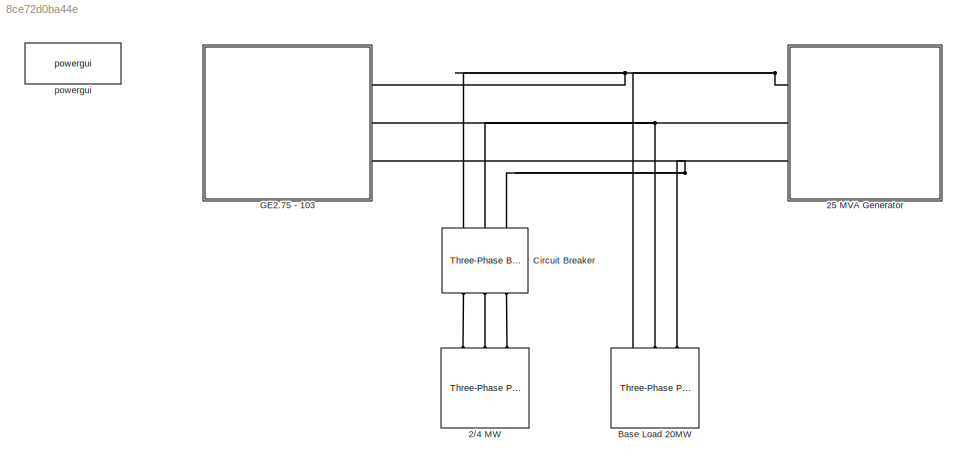
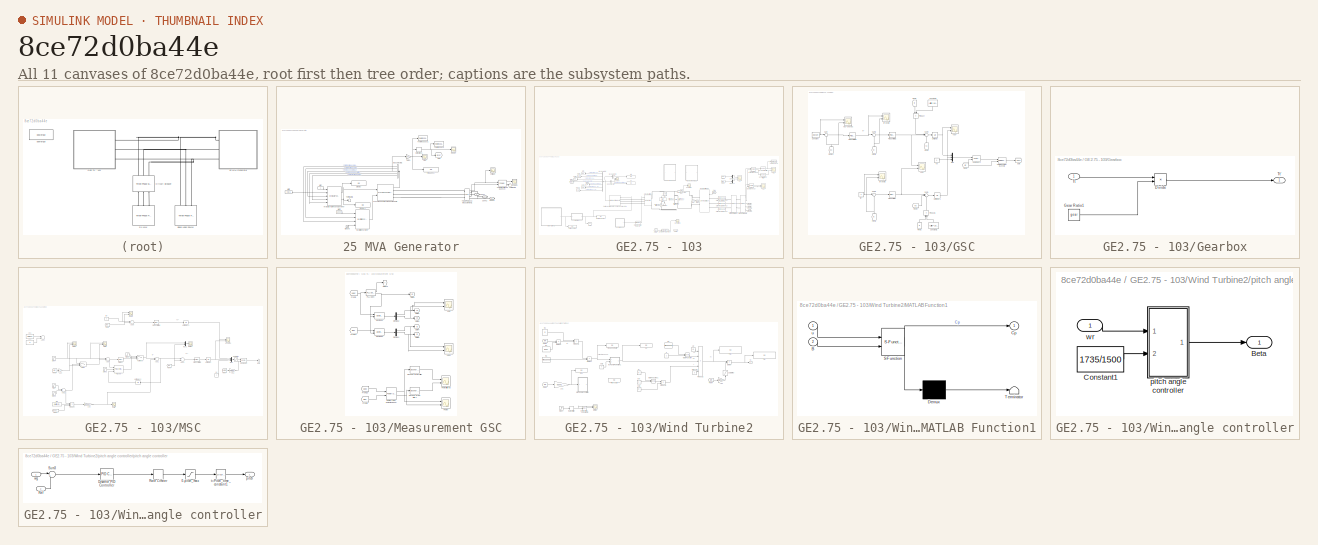
[diagram: thumbnail index - all 11 canvases of the model, root first then tree order]
MODEL slx_8ce72d0ba44e
KIND model
CONFIG AbsTol = auto
CONFIG FixedStep = Ts
CONFIG MaxStep = auto
CONFIG MinStep = auto
CONFIG PreLoadFcn = Ts=5e-6;
CONFIG RelTol = 1e-3
CONFIG SampleTimeConstraint = Unconstrained
CONFIG Solver = FixedStepDiscrete
CONFIG SolverMode = Auto
CONFIG SolverName = FixedStepDiscrete
CONFIG StartTime = 0.0
CONFIG StopTime = 3
BLOCK [Reference] 2//4 MW  REF=powerlib/Elements/Three-Phase
Parallel RLC Load
  AttributesFormatString = \n
  Ports = [0, 0, 0, 0, 0, 3]
  SourceBlock = powerlib/Elements/Three-Phase\nParallel RLC Load
  SourceType = Three-Phase Parallel RLC Load
BLOCK [SubSystem] 25 MVA Generator
  Ports = [0, 0, 0, 0, 0, 0, 3]
  RequestExecContextInheritance = off
  Variant = off
BLOCK [BusSelector] 25 MVA Generator/Bus Selector1
  OutputSignals = dq0 components.Stator voltage  vq (pu),dq0 components.Stator voltage  vd (pu),Mechanical.Rotor speed  wm  (pu),Mechanical.Rotor speed deviation  dw (pu),Output active power   Peo (pu)
  Ports = [1, 5]
BLOCK [PMIOPort] 25 MVA Generator/Conn1
  Port = 1
  Side = Right
BLOCK [PMIOPort] 25 MVA Generator/Conn2
  Port = 2
  Side = Right
BLOCK [PMIOPort] 25 MVA Generator/Conn3
  Port = 3
  Side = Right
BLOCK [Derivative] 25 MVA Generator/Derivative1
BLOCK [Display] 25 MVA Generator/Display
  Decimation = 1
  Ports = [1]
BLOCK [Display] 25 MVA Generator/Display1
  Decimation = 1
  Ports = [1]
BLOCK [Reference] 25 MVA Generator/Excitation System  REF=sps_avr/Excitation System
  Ports = [4, 1]
  SourceBlock = sps_avr/Excitation System
  SourceType = Excitation System
BLOCK [Scope] 25 MVA Generator/Freq
  Ports = [1]
  ScopeSpecificationString = Simulink.scopes.TimeScopeBlockCfg('CurrentConfiguration', extmgr.ConfigurationSet(extmgr.Configuration('Core','General UI',true),extmgr.Configuration('Core','Source UI',true),extmgr.Configuration('Sources','WiredSimulink',true,'DataLoggingVariableName','ScopeData2'),extmgr.Configuration('Visuals','Time Domain',true,'SerializedDisplays',{struct('MinYLimReal','48.95289','MaxYLimReal','49.46046','YLa...<+1446ch>
BLOCK [Display] 25 MVA Generator/Frequency
  Decimation = 1
  Ports = [1]
BLOCK [Gain] 25 MVA Generator/Gain1
  Gain = 50
  OutDataTypeStr = Inherit: Inherit via internal rule
  ParamDataTypeStr = Inherit: Inherit via internal rule
  SaturateOnIntegerOverflow = off
BLOCK [Goto] 25 MVA Generator/Goto
  GotoTag = rocof
  TagVisibility = global
BLOCK [Ground] 25 MVA Generator/Ground
BLOCK [Reference] 25 MVA Generator/Hydraulic Turbine and Governor  REF=powerlib/Machines/Hydraulic Turbine
and Governor
  Ports = [5, 2]
  SourceBlock = powerlib/Machines/Hydraulic Turbine\nand Governor
  SourceType = Hydraulic Turbine and Governor
BLOCK [Reference] 25 MVA Generator/Power (Positive-Sequence)  REF=powerlib_meascontrol/Measurements/Power
(Positive-Sequence)
  Ports = [2, 2]
  SourceBlock = powerlib_meascontrol/Measurements/Power\n(Positive-Sequence)
  SourceType = Power (Positive-Sequence)
BLOCK [Scope] 25 MVA Generator/RoCoF
  Ports = [1]
  ScopeSpecificationString = Simulink.scopes.TimeScopeBlockCfg('CurrentConfiguration', extmgr.ConfigurationSet(extmgr.Configuration('Core','General UI',true),extmgr.Configuration('Core','Source UI',true),extmgr.Configuration('Sources','WiredSimulink',true,'DataLoggingVariableName','ScopeData3'),extmgr.Configuration('Visuals','Time Domain',true,'SerializedDisplays',{struct('MinYLimReal','-5.86493','MaxYLimReal','5.96227','YLab...<+1445ch>
BLOCK [Scope] 25 MVA Generator/Scope2
  Ports = [1]
  ScopeSpecificationString = Simulink.scopes.TimeScopeBlockCfg('CurrentConfiguration', extmgr.ConfigurationSet(extmgr.Configuration('Core','General UI',true),extmgr.Configuration('Core','Source UI',true),extmgr.Configuration('Sources','WiredSimulink',true,'DataLoggingVariableName','ScopeData5'),extmgr.Configuration('Visuals','Time Domain',true,'SerializedDisplays',{struct('MinYLimReal','-9347801.98015','MaxYLimReal','21151423...<+1510ch>
BLOCK [Reference] 25 MVA Generator/Synchronous Machine pu Standard  REF=powerlib/Machines/Synchronous Machine
pu Standard
  Ports = [2, 1, 0, 0, 0, 0, 3]
  SourceBlock = powerlib/Machines/Synchronous Machine\npu Standard
  SourceType = Synchronous Machine
BLOCK [Terminator] 25 MVA Generator/Terminator1
BLOCK [Terminator] 25 MVA Generator/Terminator5
BLOCK [Reference] 25 MVA Generator/Three-Phase V-I Measurement1  REF=powerlib/Measurements/Three-Phase
V-I Measurement
  Ports = [0, 2, 0, 0, 0, 3, 3]
  SourceBlock = powerlib/Measurements/Three-Phase\nV-I Measurement
  SourceType = Three-Phase VI Measurement
BLOCK [ToWorkspace] 25 MVA Generator/To Workspace
  Decimation = 4
  FixptAsFi = on
  MaxDataPoints = inf
  Ports = [1]
  SampleTime = -1
  Save2DSignal = 3-D array (concatenate along third dimension)
  SaveFormat = Timeseries
  VariableName = rocof
BLOCK [ToWorkspace] 25 MVA Generator/To Workspace1
  Decimation = 4
  FixptAsFi = on
  MaxDataPoints = inf
  Ports = [1]
  SampleTime = -1
  Save2DSignal = 3-D array (concatenate along third dimension)
  SaveFormat = Timeseries
  VariableName = freq
BLOCK [Scope] 25 MVA Generator/Voltage
  Ports = [1]
  ScopeSpecificationString = Simulink.scopes.TimeScopeBlockCfg('CurrentConfiguration', extmgr.ConfigurationSet(extmgr.Configuration('Core','General UI',true),extmgr.Configuration('Core','Source UI',true),extmgr.Configuration('Sources','WiredSimulink',true,'DataLoggingVariableName','ScopeData1'),extmgr.Configuration('Visuals','Time Domain',true,'SerializedDisplays',{struct('MinYLimReal','548.45962','MaxYLimReal','585.07152','Y...<+1567ch>
BLOCK [Constant] 25 MVA Generator/wref
BLOCK [Constant] 25 MVA Generator/wref1
  Value = 1.0024
BLOCK [Constant] 25 MVA Generator/wref2
  Value = 0.555
BLOCK [Reference] Base Load 20MW  REF=powerlib/Elements/Three-Phase
Parallel RLC Load
  AttributesFormatString = \n
  Ports = [0, 0, 0, 0, 0, 3]
  SourceBlock = powerlib/Elements/Three-Phase\nParallel RLC Load
  SourceType = Three-Phase Parallel RLC Load
BLOCK [Reference] Circuit Breaker  REF=powerlib/Elements/Three-Phase Breaker
  Ports = [0, 0, 0, 0, 0, 3, 3]
  SourceBlock = powerlib/Elements/Three-Phase Breaker
  SourceType = Three-Phase Breaker
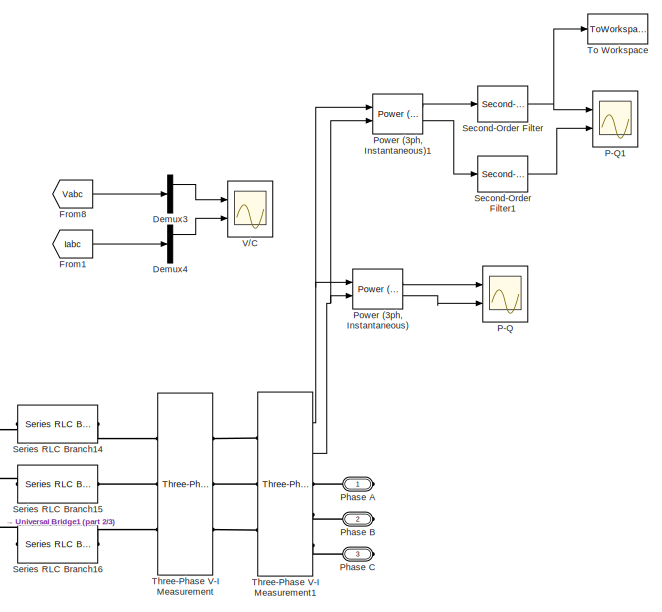
[diagram: GE2.75 - 103 - part 1/3, middle right region]
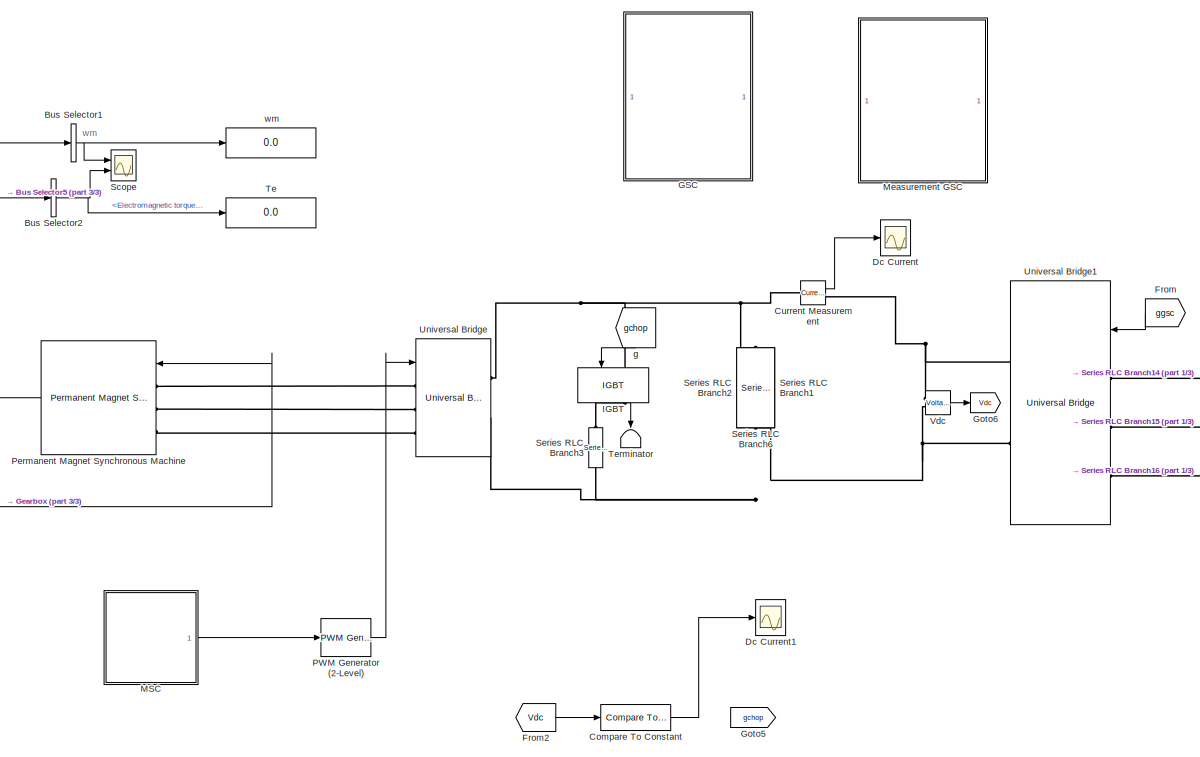
[diagram: GE2.75 - 103 - part 2/3, center side, full height]
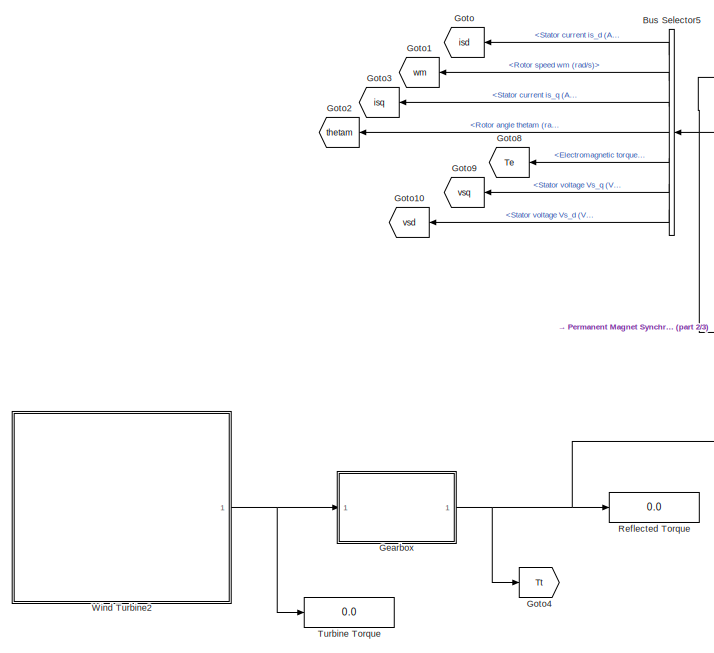
[diagram: GE2.75 - 103 - part 3/3, left side, full height]
BLOCK [SubSystem] GE2.75 - 103
  Ports = [0, 0, 0, 0, 0, 0, 3]
  RequestExecContextInheritance = off
  Variant = off
BLOCK [BusSelector] GE2.75 - 103/Bus Selector1
  OutputAsBus = on
  OutputSignals = Rotor speed wm (rad/s)
  Ports = [1, 1]
BLOCK [BusSelector] GE2.75 - 103/Bus Selector2
  OutputSignals = Electromagnetic torque Te (N*m)
  Ports = [1, 1]
BLOCK [BusSelector] GE2.75 - 103/Bus Selector5
  OutputSignals = Stator current is_d (A),Rotor speed wm (rad/s),Stator current is_q (A),Rotor angle thetam (rad),Electromagnetic torque Te (N*m),Stator voltage Vs_q (V),Stator voltage Vs_d (V)
  Ports = [1, 7]
BLOCK [Reference] GE2.75 - 103/Compare To Constant  REF=simulink/Logic and Bit
Operations/Compare
To Constant
  Ports = [1, 1]
  SourceBlock = simulink/Logic and Bit\nOperations/Compare\nTo Constant
  SourceType = Compare To Constant
BLOCK [Reference] GE2.75 - 103/Current Measurement  REF=powerlib/Measurements/Current Measurement
  Ports = [0, 1, 0, 0, 0, 1, 1]
  SourceBlock = powerlib/Measurements/Current Measurement
  SourceType = Current Measurement
  UserDataPersistent = on
BLOCK [Scope] GE2.75 - 103/Dc Current
  Ports = [1]
  ScopeSpecificationString = Simulink.scopes.TimeScopeBlockCfg('CurrentConfiguration', extmgr.ConfigurationSet(extmgr.Configuration('Core','General UI',true),extmgr.Configuration('Core','Source UI',true),extmgr.Configuration('Sources','WiredSimulink',true,'DataLoggingSaveFormat','StructureWithTime','DataLoggingDecimation','1','DataLoggingDecimateData',true,'DataLoggingVariableName','ScopeData1'),extmgr.Configuration('Visuals'...<+2270ch>
BLOCK [Scope] GE2.75 - 103/Dc Current1
  Ports = [1]
  ScopeSpecificationString = Simulink.scopes.TimeScopeBlockCfg('CurrentConfiguration', extmgr.ConfigurationSet(extmgr.Configuration('Core','General UI',true),extmgr.Configuration('Core','Source UI',true),extmgr.Configuration('Sources','WiredSimulink',true,'DataLoggingVariableName','ScopeData1'),extmgr.Configuration('Visuals','Time Domain',true,'SerializedDisplays',{struct('MinYLimReal','-0.10779','MaxYLimReal','0.15391','YLab...<+1449ch>
BLOCK [Demux] GE2.75 - 103/Demux3
  DisplayOption = bar
  Outputs = 3
  Ports = [1, 3]
BLOCK [Demux] GE2.75 - 103/Demux4
  DisplayOption = bar
  Outputs = 3
  Ports = [1, 3]
BLOCK [From] GE2.75 - 103/From
  GotoTag = ggsc
  TagVisibility = global
BLOCK [From] GE2.75 - 103/From1
  GotoTag = Iabc
  TagVisibility = global
BLOCK [From] GE2.75 - 103/From2
  GotoTag = Vdc
  TagVisibility = global
BLOCK [From] GE2.75 - 103/From8
  GotoTag = Vabc
  TagVisibility = global
BLOCK [SubSystem] GE2.75 - 103/GSC
  Ports = []
  RequestExecContextInheritance = off
  Variant = off
BLOCK [Constant] GE2.75 - 103/GSC/Constant
  Value = Vdcset
BLOCK [Constant] GE2.75 - 103/GSC/Constant1
  Value = (Lfilter*100*pi*2300)/690
BLOCK [Constant] GE2.75 - 103/GSC/Constant2
  Value = (Lfilter*100*pi*2300)/690
BLOCK [From] GE2.75 - 103/GSC/From1
  GotoTag = iq
  TagVisibility = global
BLOCK [From] GE2.75 - 103/GSC/From12
  GotoTag = Vdc
  TagVisibility = global
BLOCK [From] GE2.75 - 103/GSC/From2
  GotoTag = id
  TagVisibility = global
BLOCK [From] GE2.75 - 103/GSC/From3
  GotoTag = vd
  TagVisibility = global
BLOCK [From] GE2.75 - 103/GSC/From4
  GotoTag = vq
  TagVisibility = global
BLOCK [From] GE2.75 - 103/GSC/From5
  GotoTag = id
  TagVisibility = global
BLOCK [From] GE2.75 - 103/GSC/From6
  GotoTag = iq
  TagVisibility = global
BLOCK [From] GE2.75 - 103/GSC/From7
  GotoTag = wt
  TagVisibility = global
BLOCK [Goto] GE2.75 - 103/GSC/Goto
  GotoTag = ggsc
  TagVisibility = global
BLOCK [Mux] GE2.75 - 103/GSC/Mux
  DisplayOption = bar
  Inputs = 3
  Ports = [3, 1]
BLOCK [Reference] GE2.75 - 103/GSC/PID Controller  REF=simulink/Continuous/PID Controller
  Ports = [1, 1]
  SourceBlock = simulink/Continuous/PID Controller
  SourceType = PID 1dof
BLOCK [Reference] GE2.75 - 103/GSC/PID Controller1  REF=simulink/Continuous/PID Controller
  Ports = [1, 1]
  SourceBlock = simulink/Continuous/PID Controller
  SourceType = PID 1dof
BLOCK [Reference] GE2.75 - 103/GSC/PID Controller2  REF=simulink/Continuous/PID Controller
  Ports = [1, 1]
  SourceBlock = simulink/Continuous/PID Controller
  SourceType = PID 1dof
BLOCK [Reference] GE2.75 - 103/GSC/PWM Generator (2-Level)2  REF=powerlib_meascontrol/Pulse & Signal
Generators/PWM Generator
(2-Level)
  Ports = [2, 1]
  SourceBlock = powerlib_meascontrol/Pulse & Signal\nGenerators/PWM Generator\n(2-Level)
  SourceType = PWM Generator (2-Level)
BLOCK [Product] GE2.75 - 103/GSC/Product
  InputSameDT = off
  OutDataTypeStr = Inherit: Inherit via internal rule
  Ports = [2, 1]
  RndMeth = Floor
  SaturateOnIntegerOverflow = off
BLOCK [Product] GE2.75 - 103/GSC/Product1
  InputSameDT = off
  OutDataTypeStr = Inherit: Inherit via internal rule
  Ports = [2, 1]
  RndMeth = Floor
  SaturateOnIntegerOverflow = off
BLOCK [Sum] GE2.75 - 103/GSC/Sum
  IconShape = round
  InputSameDT = off
  Inputs = |-+
  OutDataTypeStr = Inherit: Inherit via internal rule
  Ports = [2, 1]
  SaturateOnIntegerOverflow = off
BLOCK [Sum] GE2.75 - 103/GSC/Sum1
  IconShape = round
  InputSameDT = off
  Inputs = |+++
  OutDataTypeStr = Inherit: Inherit via internal rule
  Ports = [3, 1]
  SaturateOnIntegerOverflow = off
BLOCK [Sum] GE2.75 - 103/GSC/Sum2
  IconShape = round
  InputSameDT = off
  Inputs = |+-
  OutDataTypeStr = Inherit: Inherit via internal rule
  Ports = [2, 1]
  SaturateOnIntegerOverflow = off
BLOCK [Sum] GE2.75 - 103/GSC/Sum3
  IconShape = round
  InputSameDT = off
  Inputs = |+-
  OutDataTypeStr = Inherit: Inherit via internal rule
  Ports = [2, 1]
  SaturateOnIntegerOverflow = off
BLOCK [Sum] GE2.75 - 103/GSC/Sum4
  IconShape = round
  InputSameDT = off
  Inputs = |-++
  OutDataTypeStr = Inherit: Inherit via internal rule
  Ports = [3, 1]
  SaturateOnIntegerOverflow = off
BLOCK [UnitDelay] GE2.75 - 103/GSC/Unit Delay
  InputProcessing = Elements as channels (sample based)
  SampleTime = -1
BLOCK [UnitDelay] GE2.75 - 103/GSC/Unit Delay1
  InputProcessing = Elements as channels (sample based)
  SampleTime = -1
BLOCK [Scope] GE2.75 - 103/GSC/Vdc* and Vdc
  NumInputPorts = 2
  Ports = [2]
  ScopeSpecificationString = Simulink.scopes.TimeScopeBlockCfg('CurrentConfiguration', extmgr.ConfigurationSet(extmgr.Configuration('Core','General UI',true),extmgr.Configuration('Core','Source UI',true),extmgr.Configuration('Sources','WiredSimulink',true,'DataLoggingSaveFormat','Array','DataLoggingDecimation','1','DataLoggingVariableName','ScopeData3'),extmgr.Configuration('Visuals','Time Domain',true,'SerializedDisplays',{s...<+1523ch>
BLOCK [Reference] GE2.75 - 103/GSC/dq0 to abc1  REF=powerlib_meascontrol/Transformations/dq0 to abc
  Ports = [2, 1]
  SourceBlock = powerlib_meascontrol/Transformations/dq0 to abc
  SourceType = dq0 to abc Transformation
BLOCK [Scope] GE2.75 - 103/GSC/id* and id 
  NumInputPorts = 2
  Ports = [2]
  ScopeSpecificationString = Simulink.scopes.TimeScopeBlockCfg('CurrentConfiguration', extmgr.ConfigurationSet(extmgr.Configuration('Core','General UI',true),extmgr.Configuration('Core','Source UI',true),extmgr.Configuration('Sources','WiredSimulink',true,'DataLoggingSaveFormat','Array','DataLoggingDecimation','1','DataLoggingVariableName','ScopeData3'),extmgr.Configuration('Visuals','Time Domain',true,'SerializedDisplays',{s...<+1539ch>
BLOCK [Constant] GE2.75 - 103/GSC/iq*
  Value = 0
BLOCK [Scope] GE2.75 - 103/GSC/iq* and iq 
  NumInputPorts = 2
  Ports = [2]
  ScopeSpecificationString = Simulink.scopes.TimeScopeBlockCfg('CurrentConfiguration', extmgr.ConfigurationSet(extmgr.Configuration('Core','General UI',true),extmgr.Configuration('Core','Source UI',true),extmgr.Configuration('Sources','WiredSimulink',true,'DataLoggingSaveFormat','Array','DataLoggingDecimation','1','DataLoggingVariableName','ScopeData4'),extmgr.Configuration('Visuals','Time Domain',true,'SerializedDisplays',{s...<+1508ch>
BLOCK [Constant] GE2.75 - 103/GSC/v0
  Value = 0
BLOCK [Scope] GE2.75 - 103/GSC/vdq*
  NumInputPorts = 2
  Ports = [2]
  ScopeSpecificationString = Simulink.scopes.TimeScopeBlockCfg('CurrentConfiguration', extmgr.ConfigurationSet(extmgr.Configuration('Core','General UI',true),extmgr.Configuration('Core','Source UI',true),extmgr.Configuration('Sources','WiredSimulink',true,'DataLoggingSaveFormat','Array','DataLoggingDecimation','1','DataLoggingVariableName','ScopeData1'),extmgr.Configuration('Visuals','Time Domain',true,'SerializedDisplays',{s...<+1505ch>
BLOCK [Scope] GE2.75 - 103/GSC/vdq* 
  NumInputPorts = 2
  Ports = [2]
  ScopeSpecificationString = Simulink.scopes.TimeScopeBlockCfg('CurrentConfiguration', extmgr.ConfigurationSet(extmgr.Configuration('Core','General UI',true),extmgr.Configuration('Core','Source UI',true),extmgr.Configuration('Sources','WiredSimulink',true,'DataLoggingSaveFormat','Array','DataLoggingDecimation','1','DataLoggingVariableName','ScopeData5'),extmgr.Configuration('Visuals','Time Domain',true,'SerializedDisplays',{s...<+1514ch>
BLOCK [SubSystem] GE2.75 - 103/Gearbox
  Ports = [1, 1]
  RequestExecContextInheritance = off
  Variant = off
BLOCK [Product] GE2.75 - 103/Gearbox/Divide
  InputSameDT = off
  Inputs = */
  OutDataTypeStr = Inherit: Inherit via internal rule
  Ports = [2, 1]
  RndMeth = Floor
  SaturateOnIntegerOverflow = off
BLOCK [Constant] GE2.75 - 103/Gearbox/Gear Ratio1
  Value = gear
BLOCK [Inport] GE2.75 - 103/Gearbox/Tt
  IconDisplay = Port number
BLOCK [Outport] GE2.75 - 103/Gearbox/Tt'
  IconDisplay = Port number
BLOCK [Goto] GE2.75 - 103/Goto
  GotoTag = isd
  TagVisibility = global
BLOCK [Goto] GE2.75 - 103/Goto1
  GotoTag = wm
  TagVisibility = global
BLOCK [Goto] GE2.75 - 103/Goto10
  GotoTag = vsd
  TagVisibility = global
BLOCK [Goto] GE2.75 - 103/Goto2
  GotoTag = thetam
  TagVisibility = global
BLOCK [Goto] GE2.75 - 103/Goto3
  GotoTag = isq
  TagVisibility = global
BLOCK [Goto] GE2.75 - 103/Goto4
  GotoTag = Tt
  TagVisibility = global
BLOCK [Goto] GE2.75 - 103/Goto5
  GotoTag = gchop
  TagVisibility = global
BLOCK [Goto] GE2.75 - 103/Goto6
  GotoTag = Vdc
  TagVisibility = global
BLOCK [Goto] GE2.75 - 103/Goto8
  GotoTag = Te
  TagVisibility = global
BLOCK [Goto] GE2.75 - 103/Goto9
  GotoTag = vsq
  TagVisibility = global
BLOCK [Reference] GE2.75 - 103/IGBT  REF=powerlib/Power
Electronics/IGBT
  Ports = [1, 1, 0, 0, 0, 1, 1]
  SourceBlock = powerlib/Power\nElectronics/IGBT
  SourceType = IGBT
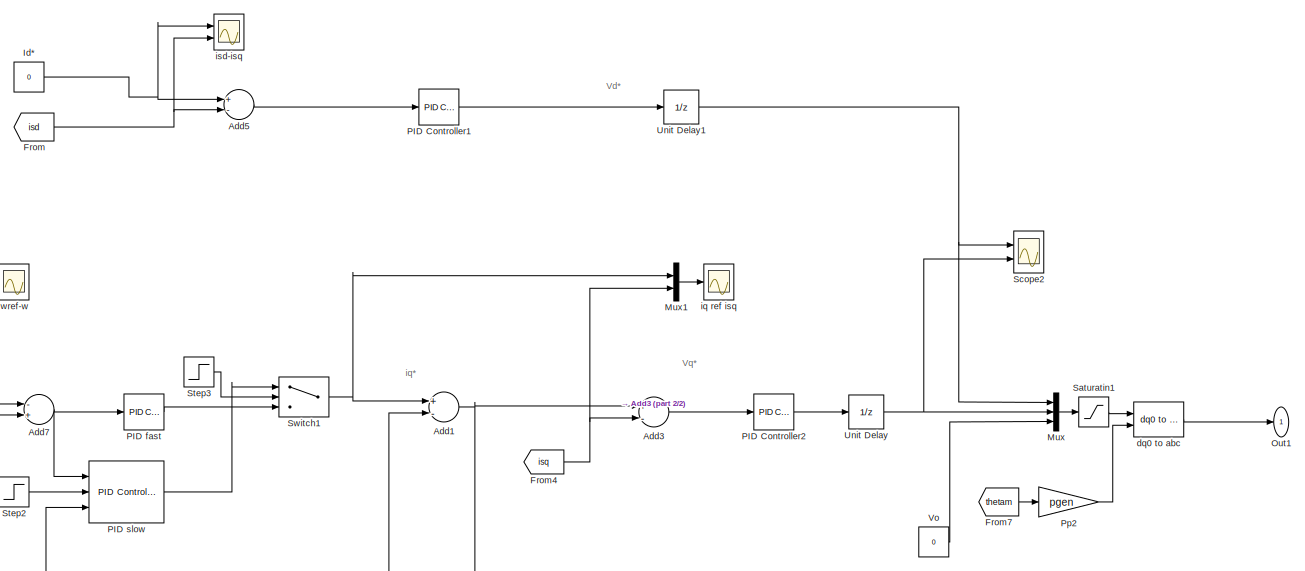
[diagram: GE2.75 - 103/MSC - part 1/2, central region]
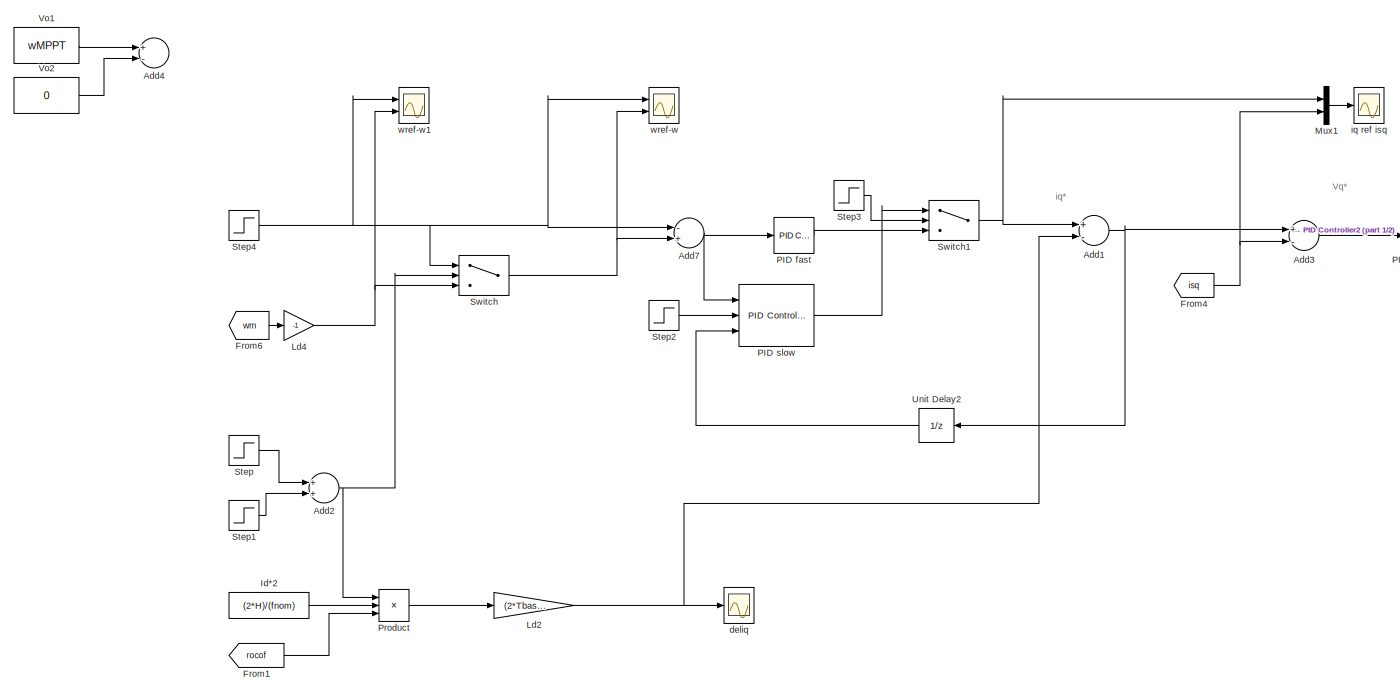
[diagram: GE2.75 - 103/MSC - part 2/2, center side, full height]
BLOCK [SubSystem] GE2.75 - 103/MSC
  Ports = [0, 1]
  RequestExecContextInheritance = off
  Variant = off
BLOCK [Sum] GE2.75 - 103/MSC/Add1
  InputSameDT = off
  Inputs = +-
  OutDataTypeStr = Inherit: Inherit via internal rule
  Ports = [2, 1]
  SaturateOnIntegerOverflow = off
BLOCK [Sum] GE2.75 - 103/MSC/Add2
  InputSameDT = off
  OutDataTypeStr = Inherit: Inherit via internal rule
  Ports = [2, 1]
  SaturateOnIntegerOverflow = off
BLOCK [Sum] GE2.75 - 103/MSC/Add3
  InputSameDT = off
  Inputs = +-
  OutDataTypeStr = Inherit: Inherit via internal rule
  Ports = [2, 1]
  SaturateOnIntegerOverflow = off
BLOCK [Sum] GE2.75 - 103/MSC/Add4
  InputSameDT = off
  Inputs = +-
  OutDataTypeStr = Inherit: Inherit via internal rule
  Ports = [2, 1]
  SaturateOnIntegerOverflow = off
BLOCK [Sum] GE2.75 - 103/MSC/Add5
  InputSameDT = off
  Inputs = +-
  OutDataTypeStr = Inherit: Inherit via internal rule
  Ports = [2, 1]
  SaturateOnIntegerOverflow = off
BLOCK [Sum] GE2.75 - 103/MSC/Add7
  InputSameDT = off
  Inputs = -+
  OutDataTypeStr = Inherit: Inherit via internal rule
  Ports = [2, 1]
  SaturateOnIntegerOverflow = off
BLOCK [From] GE2.75 - 103/MSC/From
  GotoTag = isd
  TagVisibility = global
BLOCK [From] GE2.75 - 103/MSC/From1
  GotoTag = rocof
  TagVisibility = global
BLOCK [From] GE2.75 - 103/MSC/From4
  GotoTag = isq
  TagVisibility = global
BLOCK [From] GE2.75 - 103/MSC/From6
  GotoTag = wm
  TagVisibility = global
BLOCK [From] GE2.75 - 103/MSC/From7
  GotoTag = thetam
  TagVisibility = global
BLOCK [Constant] GE2.75 - 103/MSC/Id*
  Value = 0
BLOCK [Constant] GE2.75 - 103/MSC/Id*2
  Value = (2*H)/(fnom)
BLOCK [Gain] GE2.75 - 103/MSC/Ld2
  Gain = (2*Tbase)/(3*pgen*fluxlinkage)
  OutDataTypeStr = Inherit: Inherit via internal rule
  ParamDataTypeStr = Inherit: Inherit via internal rule
  SaturateOnIntegerOverflow = off
BLOCK [Gain] GE2.75 - 103/MSC/Ld4
  Gain = -1
  OutDataTypeStr = Inherit: Inherit via internal rule
  ParamDataTypeStr = Inherit: Inherit via internal rule
  SaturateOnIntegerOverflow = off
BLOCK [Mux] GE2.75 - 103/MSC/Mux
  DisplayOption = bar
  Inputs = 3
  Ports = [3, 1]
BLOCK [Mux] GE2.75 - 103/MSC/Mux1
  DisplayOption = bar
  Inputs = 2
  Ports = [2, 1]
BLOCK [Outport] GE2.75 - 103/MSC/Out1
  IconDisplay = Port number
BLOCK [Reference] GE2.75 - 103/MSC/PID Controller1  REF=simulink/Continuous/PID Controller
  Ports = [1, 1]
  SourceBlock = simulink/Continuous/PID Controller
  SourceType = PID 1dof
BLOCK [Reference] GE2.75 - 103/MSC/PID Controller2  REF=simulink/Continuous/PID Controller
  Ports = [1, 1]
  SourceBlock = simulink/Continuous/PID Controller
  SourceType = PID 1dof
BLOCK [Reference] GE2.75 - 103/MSC/PID fast  REF=simulink/Continuous/PID Controller
  Ports = [1, 1]
  SourceBlock = simulink/Continuous/PID Controller
  SourceType = PID 1dof
BLOCK [Reference] GE2.75 - 103/MSC/PID slow  REF=simulink/Continuous/PID Controller
  Ports = [3, 1]
  SourceBlock = simulink/Continuous/PID Controller
  SourceType = PID 1dof
BLOCK [Gain] GE2.75 - 103/MSC/Pp2
  Gain = pgen
  OutDataTypeStr = Inherit: Inherit via internal rule
  ParamDataTypeStr = Inherit: Inherit via internal rule
  SaturateOnIntegerOverflow = off
BLOCK [Product] GE2.75 - 103/MSC/Product
  InputSameDT = off
  Inputs = 3
  OutDataTypeStr = Inherit: Inherit via internal rule
  Ports = [3, 1]
  RndMeth = Floor
  SaturateOnIntegerOverflow = off
BLOCK [Saturate] GE2.75 - 103/MSC/Saturatin1
  InputPortMap = u0
  LowerLimit = -2000
  Ports = [1, 1]
  UpperLimit = 2000
BLOCK [Scope] GE2.75 - 103/MSC/Scope2
  NumInputPorts = 2
  Ports = [2]
  ScopeSpecificationString = Simulink.scopes.TimeScopeBlockCfg('CurrentConfiguration', extmgr.ConfigurationSet(extmgr.Configuration('Core','General UI',true),extmgr.Configuration('Core','Source UI',true),extmgr.Configuration('Sources','WiredSimulink',true,'DataLoggingVariableName','ScopeData3'),extmgr.Configuration('Visuals','Time Domain',true,'SerializedDisplays',{struct('MinYLimReal','-115381.99165','MaxYLimReal','70256.668...<+1490ch>
BLOCK [Step] GE2.75 - 103/MSC/Step
  Time = suptime
BLOCK [Step] GE2.75 - 103/MSC/Step1
  After = -1
  Time = suptime+supduration
BLOCK [Step] GE2.75 - 103/MSC/Step2
  Time = loadtrip-0.1
BLOCK [Step] GE2.75 - 103/MSC/Step3
  Time = loadtrip-0.1
BLOCK [Step] GE2.75 - 103/MSC/Step4
  After = wMPPT
  Before = whigh
  Time = loadtrip
BLOCK [Switch] GE2.75 - 103/MSC/Switch
  Criteria = u2 > Threshold
  InputSameDT = off
  SaturateOnIntegerOverflow = off
  Threshold = 0.5
BLOCK [Switch] GE2.75 - 103/MSC/Switch1
  Criteria = u2 > Threshold
  InputSameDT = off
  SaturateOnIntegerOverflow = off
  Threshold = 0.5
BLOCK [UnitDelay] GE2.75 - 103/MSC/Unit Delay
  InputProcessing = Elements as channels (sample based)
  SampleTime = -1
BLOCK [UnitDelay] GE2.75 - 103/MSC/Unit Delay1
  InputProcessing = Elements as channels (sample based)
  SampleTime = -1
BLOCK [UnitDelay] GE2.75 - 103/MSC/Unit Delay2
  InputProcessing = Elements as channels (sample based)
  SampleTime = -1
BLOCK [Constant] GE2.75 - 103/MSC/Vo
  Value = 0
BLOCK [Constant] GE2.75 - 103/MSC/Vo1
  Value = wMPPT
BLOCK [Constant] GE2.75 - 103/MSC/Vo2
  Value = 0
BLOCK [Scope] GE2.75 - 103/MSC/deliq
  Ports = [1]
  ScopeSpecificationString = Simulink.scopes.TimeScopeBlockCfg('CurrentConfiguration', extmgr.ConfigurationSet(extmgr.Configuration('Core','General UI',true),extmgr.Configuration('Core','Source UI',true),extmgr.Configuration('Sources','WiredSimulink',true,'DataLoggingVariableName','ScopeData2'),extmgr.Configuration('Visuals','Time Domain',true,'SerializedDisplays',{struct('MinYLimReal','-75.20807','MaxYLimReal','8.35645','YLa...<+1440ch>
BLOCK [Reference] GE2.75 - 103/MSC/dq0 to abc  REF=powerlib_meascontrol/Transformations/dq0 to abc
  Ports = [2, 1]
  SourceBlock = powerlib_meascontrol/Transformations/dq0 to abc
  SourceType = dq0 to abc Transformation
BLOCK [Scope] GE2.75 - 103/MSC/iq ref isq
  Ports = [1]
  ScopeSpecificationString = Simulink.scopes.TimeScopeBlockCfg('CurrentConfiguration', extmgr.ConfigurationSet(extmgr.Configuration('Core','General UI',true),extmgr.Configuration('Core','Source UI',true),extmgr.Configuration('Sources','WiredSimulink',true,'DataLoggingVariableName','ScopeData7'),extmgr.Configuration('Visuals','Time Domain',true,'SerializedDisplays',{struct('MinYLimReal','-3648.62556','MaxYLimReal','4934.84326'...<+1491ch>
BLOCK [Scope] GE2.75 - 103/MSC/isd-isq
  NumInputPorts = 2
  Ports = [2]
  ScopeSpecificationString = Simulink.scopes.TimeScopeBlockCfg('CurrentConfiguration', extmgr.ConfigurationSet(extmgr.Configuration('Core','General UI',true),extmgr.Configuration('Core','Source UI',true),extmgr.Configuration('Sources','WiredSimulink',true,'DataLoggingVariableName','ScopeData3'),extmgr.Configuration('Visuals','Time Domain',true,'SerializedDisplays',{struct('MinYLimReal','-7465.09969','MaxYLimReal','913.23689',...<+1482ch>
BLOCK [Scope] GE2.75 - 103/MSC/wref-w
  NumInputPorts = 2
  Ports = [2]
  ScopeSpecificationString = Simulink.scopes.TimeScopeBlockCfg('CurrentConfiguration', extmgr.ConfigurationSet(extmgr.Configuration('Core','General UI',true),extmgr.Configuration('Core','Source UI',true),extmgr.Configuration('Sources','WiredSimulink',true,'DataLoggingVariableName','ScopeData4'),extmgr.Configuration('Visuals','Time Domain',true,'SerializedDisplays',{struct('MinYLimReal','173.66697','MaxYLimReal','186.28007','Y...<+1458ch>
BLOCK [Scope] GE2.75 - 103/MSC/wref-w1
  NumInputPorts = 2
  Ports = [2]
  ScopeSpecificationString = Simulink.scopes.TimeScopeBlockCfg('CurrentConfiguration', extmgr.ConfigurationSet(extmgr.Configuration('Core','General UI',true),extmgr.Configuration('Core','Source UI',true),extmgr.Configuration('Sources','WiredSimulink',true,'DataLoggingVariableName','ScopeData1'),extmgr.Configuration('Visuals','Time Domain',true,'SerializedDisplays',{struct('MinYLimReal','143.05603','MaxYLimReal','189.68406','Y...<+1460ch>
BLOCK [SubSystem] GE2.75 - 103/Measurement GSC
  Ports = []
  RequestExecContextInheritance = off
  Variant = off
BLOCK [Demux] GE2.75 - 103/Measurement GSC/Demux1
  DisplayOption = bar
  Outputs = 3
  Ports = [1, 3]
BLOCK [Demux] GE2.75 - 103/Measurement GSC/Demux2
  DisplayOption = bar
  Outputs = 3
  Ports = [1, 3]
BLOCK [From] GE2.75 - 103/Measurement GSC/From10
  GotoTag = Vabc
  TagVisibility = global
BLOCK [From] GE2.75 - 103/Measurement GSC/From11
  GotoTag = Iabc
  TagVisibility = global
BLOCK [From] GE2.75 - 103/Measurement GSC/From2
  GotoTag = Vabc
  TagVisibility = global
BLOCK [From] GE2.75 - 103/Measurement GSC/From9
  GotoTag = Iabc
  TagVisibility = global
BLOCK [Goto] GE2.75 - 103/Measurement GSC/Goto1
  GotoTag = wt
  TagVisibility = global
BLOCK [Goto] GE2.75 - 103/Measurement GSC/Goto13
  GotoTag = f
  TagVisibility = global
BLOCK [Goto] GE2.75 - 103/Measurement GSC/Goto2
  GotoTag = vd
  TagVisibility = global
BLOCK [Goto] GE2.75 - 103/Measurement GSC/Goto3
  GotoTag = vq
  TagVisibility = global
BLOCK [Goto] GE2.75 - 103/Measurement GSC/Goto4
  GotoTag = id
  TagVisibility = global
BLOCK [Goto] GE2.75 - 103/Measurement GSC/Goto5
  GotoTag = iq
  TagVisibility = global
BLOCK [Reference] GE2.75 - 103/Measurement GSC/PLL (3ph)  REF=powerlib_meascontrol/PLL/PLL
(3ph)
  Ports = [1, 2]
  SourceBlock = powerlib_meascontrol/PLL/PLL\n(3ph)
  SourceType = PLL (3ph)
BLOCK [Scope] GE2.75 - 103/Measurement GSC/Power
  NumInputPorts = 2
  Ports = [2]
  ScopeSpecificationString = Simulink.scopes.TimeScopeBlockCfg('CurrentConfiguration', extmgr.ConfigurationSet(extmgr.Configuration('Core','General UI',true),extmgr.Configuration('Core','Source UI',true),extmgr.Configuration('Sources','WiredSimulink',true,'DataLoggingVariableName','ScopeData1'),extmgr.Configuration('Visuals','Time Domain',true,'SerializedDisplays',{struct('MinYLimReal','1.27459','MaxYLimReal','1.63658','YLabe...<+1487ch>
BLOCK [Reference] GE2.75 - 103/Measurement GSC/Power (3ph, Instantaneous)  REF=powerlib_meascontrol/Measurements/Power
(3ph, Instantaneous)
  Ports = [2, 2]
  SourceBlock = powerlib_meascontrol/Measurements/Power\n(3ph, Instantaneous)
  SourceType = Power (3ph, Instantaneous)
BLOCK [Scope] GE2.75 - 103/Measurement GSC/Powerfiltered 
  NumInputPorts = 2
  Ports = [2]
  ScopeSpecificationString = Simulink.scopes.TimeScopeBlockCfg('CurrentConfiguration', extmgr.ConfigurationSet(extmgr.Configuration('Core','General UI',true),extmgr.Configuration('Core','Source UI',true),extmgr.Configuration('Sources','WiredSimulink',true,'DataLoggingVariableName','ScopeData2','DataLoggingLimitDataPoints',true,'DataLoggingSaveFormat','Array','DataLoggingDecimation','1','DataLoggingDecimateData',true),extmgr.C...<+1597ch>
BLOCK [Reference] GE2.75 - 103/Measurement GSC/Second-Order Filter  REF=powerlib_meascontrol/Filters/Second-Order
Filter
  Ports = [1, 1]
  SourceBlock = powerlib_meascontrol/Filters/Second-Order\nFilter
  SourceType = Second-Order Filter
BLOCK [Reference] GE2.75 - 103/Measurement GSC/Second-Order Filter1  REF=powerlib_meascontrol/Filters/Second-Order
Filter
  Ports = [1, 1]
  SourceBlock = powerlib_meascontrol/Filters/Second-Order\nFilter
  SourceType = Second-Order Filter
BLOCK [Reference] GE2.75 - 103/Measurement GSC/abc to dq1  REF=powerlib_meascontrol/Transformations/abc to dq0
  Ports = [2, 1]
  SourceBlock = powerlib_meascontrol/Transformations/abc to dq0
  SourceType = abc to dq0 Transformation
BLOCK [Reference] GE2.75 - 103/Measurement GSC/abc to dq2  REF=powerlib_meascontrol/Transformations/abc to dq0
  Ports = [2, 1]
  SourceBlock = powerlib_meascontrol/Transformations/abc to dq0
  SourceType = abc to dq0 Transformation
BLOCK [Scope] GE2.75 - 103/Measurement GSC/vdq
  NumInputPorts = 2
  Ports = [2]
  ScopeSpecificationString = Simulink.scopes.TimeScopeBlockCfg('CurrentConfiguration', extmgr.ConfigurationSet(extmgr.Configuration('Core','General UI',true),extmgr.Configuration('Core','Source UI',true),extmgr.Configuration('Sources','WiredSimulink',true,'DataLoggingSaveFormat','Array','DataLoggingDecimation','1','DataLoggingVariableName','ScopeData1'),extmgr.Configuration('Visuals','Time Domain',true,'SerializedDisplays',{s...<+1509ch>
BLOCK [Scope] GE2.75 - 103/Measurement GSC/vdq1
  NumInputPorts = 2
  Ports = [2]
  ScopeSpecificationString = Simulink.scopes.TimeScopeBlockCfg('CurrentConfiguration', extmgr.ConfigurationSet(extmgr.Configuration('Core','General UI',true),extmgr.Configuration('Core','Source UI',true),extmgr.Configuration('Sources','WiredSimulink',true,'DataLoggingSaveFormat','Array','DataLoggingDecimation','1','DataLoggingVariableName','ScopeData2'),extmgr.Configuration('Visuals','Time Domain',true,'SerializedDisplays',{s...<+1509ch>
BLOCK [Scope] GE2.75 - 103/P-Q
  NumInputPorts = 2
  Ports = [2]
  ScopeSpecificationString = Simulink.scopes.TimeScopeBlockCfg('CurrentConfiguration', extmgr.ConfigurationSet(extmgr.Configuration('Core','General UI',true),extmgr.Configuration('Core','Source UI',true),extmgr.Configuration('Sources','WiredSimulink',true,'DataLoggingVariableName','ScopeData1'),extmgr.Configuration('Visuals','Time Domain',true,'SerializedDisplays',{struct('MinYLimReal','-38353716.22794','MaxYLimReal','3869697...<+1543ch>
BLOCK [Scope] GE2.75 - 103/P-Q1
  NumInputPorts = 2
  Ports = [2]
  ScopeSpecificationString = Simulink.scopes.TimeScopeBlockCfg('CurrentConfiguration', extmgr.ConfigurationSet(extmgr.Configuration('Core','General UI',true),extmgr.Configuration('Core','Source UI',true),extmgr.Configuration('Sources','WiredSimulink',true,'DataLoggingVariableName','ScopeData1'),extmgr.Configuration('Visuals','Time Domain',true,'SerializedDisplays',{struct('MinYLimReal','-2230973.08988','MaxYLimReal','4808144....<+1518ch>
BLOCK [Reference] GE2.75 - 103/PWM Generator (2-Level)  REF=powerlib_meascontrol/Pulse & Signal
Generators/PWM Generator
(2-Level)
  Ports = [1, 1]
  SourceBlock = powerlib_meascontrol/Pulse & Signal\nGenerators/PWM Generator\n(2-Level)
  SourceType = PWM Generator (2-Level)
BLOCK [Reference] GE2.75 - 103/Permanent Magnet Synchronous Machine  REF=powerlib/Machines/Permanent Magnet
Synchronous Machine
  Ports = [1, 1, 0, 0, 0, 3]
  SourceBlock = powerlib/Machines/Permanent Magnet\nSynchronous Machine
  SourceType = Permanent Magnet Synchronous Machine
BLOCK [PMIOPort] GE2.75 - 103/Phase A
  Port = 1
  Side = Right
BLOCK [PMIOPort] GE2.75 - 103/Phase B
  Port = 2
  Side = Right
BLOCK [PMIOPort] GE2.75 - 103/Phase C
  Port = 3
  Side = Right
BLOCK [Reference] GE2.75 - 103/Power (3ph, Instantaneous)  REF=powerlib_meascontrol/Measurements/Power
(3ph, Instantaneous)
  Ports = [2, 2]
  SourceBlock = powerlib_meascontrol/Measurements/Power\n(3ph, Instantaneous)
  SourceType = Power (3ph, Instantaneous)
BLOCK [Reference] GE2.75 - 103/Power (3ph, Instantaneous)1  REF=powerlib_meascontrol/Measurements/Power
(3ph, Instantaneous)
  Ports = [2, 2]
  SourceBlock = powerlib_meascontrol/Measurements/Power\n(3ph, Instantaneous)
  SourceType = Power (3ph, Instantaneous)
BLOCK [Display] GE2.75 - 103/Reflected Torque
  Decimation = 1
  Ports = [1]
BLOCK [Scope] GE2.75 - 103/Scope
  NumInputPorts = 2
  Ports = [2]
  ScopeSpecificationString = Simulink.scopes.TimeScopeBlockCfg('CurrentConfiguration', extmgr.ConfigurationSet(extmgr.Configuration('Core','General UI',true),extmgr.Configuration('Core','Source UI',true),extmgr.Configuration('Sources','WiredSimulink',true,'DataLoggingSaveFormat','StructureWithTime','DataLoggingDecimation','1','DataLoggingDecimateData',true),extmgr.Configuration('Visuals','Time Domain',true,'SerializedDisplays...<+2258ch>
BLOCK [Reference] GE2.75 - 103/Second-Order Filter  REF=powerlib_meascontrol/Filters/Second-Order
Filter
  Ports = [1, 1]
  SourceBlock = powerlib_meascontrol/Filters/Second-Order\nFilter
  SourceType = Second-Order Filter
BLOCK [Reference] GE2.75 - 103/Second-Order Filter1  REF=powerlib_meascontrol/Filters/Second-Order
Filter
  Ports = [1, 1]
  SourceBlock = powerlib_meascontrol/Filters/Second-Order\nFilter
  SourceType = Second-Order Filter
BLOCK [Reference] GE2.75 - 103/Series RLC Branch1  REF=powerlib/Elements/Series RLC Branch
  Ports = [0, 0, 0, 0, 0, 1, 1]
  SourceBlock = powerlib/Elements/Series RLC Branch
  SourceType = Series RLC Branch
BLOCK [Reference] GE2.75 - 103/Series RLC Branch14  REF=powerlib/Elements/Series RLC Branch
  Ports = [0, 0, 0, 0, 0, 1, 1]
  SourceBlock = powerlib/Elements/Series RLC Branch
  SourceType = Series RLC Branch
BLOCK [Reference] GE2.75 - 103/Series RLC Branch15  REF=powerlib/Elements/Series RLC Branch
  Ports = [0, 0, 0, 0, 0, 1, 1]
  SourceBlock = powerlib/Elements/Series RLC Branch
  SourceType = Series RLC Branch
BLOCK [Reference] GE2.75 - 103/Series RLC Branch16  REF=powerlib/Elements/Series RLC Branch
  Ports = [0, 0, 0, 0, 0, 1, 1]
  SourceBlock = powerlib/Elements/Series RLC Branch
  SourceType = Series RLC Branch
BLOCK [Reference] GE2.75 - 103/Series RLC Branch2  REF=powerlib/Elements/Series RLC Branch
  Ports = [0, 0, 0, 0, 0, 1, 1]
  SourceBlock = powerlib/Elements/Series RLC Branch
  SourceType = Series RLC Branch
BLOCK [Reference] GE2.75 - 103/Series RLC Branch3  REF=powerlib/Elements/Series RLC Branch
  Ports = [0, 0, 0, 0, 0, 1, 1]
  SourceBlock = powerlib/Elements/Series RLC Branch
  SourceType = Series RLC Branch
BLOCK [Reference] GE2.75 - 103/Series RLC Branch6  REF=powerlib/Elements/Series RLC Branch
  Ports = [0, 0, 0, 0, 0, 1, 1]
  SourceBlock = powerlib/Elements/Series RLC Branch
  SourceType = Series RLC Branch
BLOCK [Display] GE2.75 - 103/Te
  Decimation = 1
  Ports = [1]
BLOCK [Terminator] GE2.75 - 103/Terminator
BLOCK [Reference] GE2.75 - 103/Three-Phase V-I Measurement  REF=powerlib/Measurements/Three-Phase
V-I Measurement
  Ports = [0, 0, 0, 0, 0, 3, 3]
  SourceBlock = powerlib/Measurements/Three-Phase\nV-I Measurement
  SourceType = Three-Phase VI Measurement
BLOCK [Reference] GE2.75 - 103/Three-Phase V-I Measurement1  REF=powerlib/Measurements/Three-Phase
V-I Measurement
  Ports = [0, 2, 0, 0, 0, 3, 3]
  SourceBlock = powerlib/Measurements/Three-Phase\nV-I Measurement
  SourceType = Three-Phase VI Measurement
BLOCK [ToWorkspace] GE2.75 - 103/To Workspace
  FixptAsFi = on
  MaxDataPoints = inf
  Ports = [1]
  SampleTime = -1
  Save2DSignal = 3-D array (concatenate along third dimension)
  SaveFormat = Timeseries
  VariableName = power
BLOCK [Display] GE2.75 - 103/Turbine Torque
  Decimation = 1
  Ports = [1]
BLOCK [Reference] GE2.75 - 103/Universal Bridge  REF=powerlib/Power
Electronics/Universal Bridge
  Ports = [1, 0, 0, 0, 0, 3, 2]
  SourceBlock = powerlib/Power\nElectronics/Universal Bridge
  SourceType = Universal Bridge
BLOCK [Reference] GE2.75 - 103/Universal Bridge1  REF=powerlib/Power
Electronics/Universal Bridge
  Ports = [1, 0, 0, 0, 0, 3, 2]
  SourceBlock = powerlib/Power\nElectronics/Universal Bridge
  SourceType = Universal Bridge
BLOCK [Scope] GE2.75 - 103/V//C 
  NumInputPorts = 2
  Ports = [2]
  ScopeSpecificationString = Simulink.scopes.TimeScopeBlockCfg('CurrentConfiguration', extmgr.ConfigurationSet(extmgr.Configuration('Core','General UI',true),extmgr.Configuration('Core','Source UI',true),extmgr.Configuration('Sources','WiredSimulink',true,'DataLoggingVariableName','ScopeData1'),extmgr.Configuration('Visuals','Time Domain',true,'SerializedDisplays',{struct('MinYLimReal','-20.6376','MaxYLimReal','8.22207','YLab...<+1449ch>
BLOCK [Reference] GE2.75 - 103/Vdc  REF=powerlib/Measurements/Voltage Measurement
  Ports = [0, 1, 0, 0, 0, 2]
  SourceBlock = powerlib/Measurements/Voltage Measurement
  SourceType = Voltage Measurement
  UserDataPersistent = on
BLOCK [SubSystem] GE2.75 - 103/Wind Turbine2
  Ports = [0, 1]
  RequestExecContextInheritance = off
  Variant = off
BLOCK [Constant] GE2.75 - 103/Wind Turbine2/1//2
  Value = 0.5
BLOCK [Constant] GE2.75 - 103/Wind Turbine2/3
  Value = 3
BLOCK [Constant] GE2.75 - 103/Wind Turbine2/Air Density
  Value = p
BLOCK [Display] GE2.75 - 103/Wind Turbine2/Cp
  Decimation = 1
  Ports = [1]
BLOCK [Product] GE2.75 - 103/Wind Turbine2/Divide
  InputSameDT = off
  Inputs = */
  OutDataTypeStr = Inherit: Inherit via internal rule
  Ports = [2, 1]
  RndMeth = Floor
  SaturateOnIntegerOverflow = off
BLOCK [Product] GE2.75 - 103/Wind Turbine2/Divide1
  InputSameDT = off
  Inputs = */
  OutDataTypeStr = Inherit: Inherit via internal rule
  Ports = [2, 1]
  RndMeth = Floor
  SaturateOnIntegerOverflow = off
BLOCK [Product] GE2.75 - 103/Wind Turbine2/Divide2
  InputSameDT = off
  Inputs = */
  OutDataTypeStr = Inherit: Inherit via internal rule
  Ports = [2, 1]
  RndMeth = Floor
  SaturateOnIntegerOverflow = off
BLOCK [From] GE2.75 - 103/Wind Turbine2/From1
  GotoTag = wm
  TagVisibility = global
BLOCK [From] GE2.75 - 103/Wind Turbine2/From2
  GotoTag = wm
  TagVisibility = global
BLOCK [From] GE2.75 - 103/Wind Turbine2/From4
  GotoTag = wm
  TagVisibility = global
BLOCK [Gain] GE2.75 - 103/Wind Turbine2/Ld1
  Gain = -pgen/(2*fnom*pi)
  OutDataTypeStr = Inherit: Inherit via internal rule
  ParamDataTypeStr = Inherit: Inherit via internal rule
  SaturateOnIntegerOverflow = off
BLOCK [Gain] GE2.75 - 103/Wind Turbine2/Ld3
  Gain = -1/gear
  OutDataTypeStr = Inherit: Inherit via internal rule
  ParamDataTypeStr = Inherit: Inherit via internal rule
  SaturateOnIntegerOverflow = off
BLOCK [SubSystem] GE2.75 - 103/Wind Turbine2/MATLAB Function1
  ErrorFcn = Stateflow.Translate.translate
  PermitHierarchicalResolution = ExplicitOnly
  Ports = [2, 1]
  RequestExecContextInheritance = off
  SFBlockType = MATLAB Function
  TreatAsAtomicUnit = on
  Variant = off
BLOCK [Demux] GE2.75 - 103/Wind Turbine2/MATLAB Function1/ Demux 
  Outputs = 1
  Ports = [1, 1]
BLOCK [S-Function] GE2.75 - 103/Wind Turbine2/MATLAB Function1/ SFunction 
  EnableBusSupport = on
  FunctionName = sf_sfun
  PortCounts = [2 2]
  Ports = [2, 2]
  SFunctionDeploymentMode = off
  Tag = Stateflow S-Function GE275103_inertial_support 4
BLOCK [Terminator] GE2.75 - 103/Wind Turbine2/MATLAB Function1/ Terminator 
BLOCK [Inport] GE2.75 - 103/Wind Turbine2/MATLAB Function1/B
  IconDisplay = Port number
  Port = 2
BLOCK [Outport] GE2.75 - 103/Wind Turbine2/MATLAB Function1/Cp
  IconDisplay = Port number
BLOCK [Inport] GE2.75 - 103/Wind Turbine2/MATLAB Function1/u
  IconDisplay = Port number
BLOCK [Math] GE2.75 - 103/Wind Turbine2/Math Function
  Operator = pow
  Ports = [2, 1]
BLOCK [Math] GE2.75 - 103/Wind Turbine2/Math Function1
  Operator = pow
  Ports = [2, 1]
BLOCK [Display] GE2.75 - 103/Wind Turbine2/Pitch Angle
  Decimation = 1
  Ports = [1]
BLOCK [Product] GE2.75 - 103/Wind Turbine2/Product1
  InputSameDT = off
  OutDataTypeStr = Inherit: Inherit via internal rule
  Ports = [2, 1]
  RndMeth = Floor
  SaturateOnIntegerOverflow = off
BLOCK [Product] GE2.75 - 103/Wind Turbine2/Product2
  InputSameDT = off
  Inputs = 5
  OutDataTypeStr = Inherit: Inherit via internal rule
  Ports = [5, 1]
  RndMeth = Floor
  SaturateOnIntegerOverflow = off
BLOCK [Product] GE2.75 - 103/Wind Turbine2/Product3
  InputSameDT = off
  OutDataTypeStr = Inherit: Inherit via internal rule
  Ports = [2, 1]
  RndMeth = Floor
  SaturateOnIntegerOverflow = off
BLOCK [Display] GE2.75 - 103/Wind Turbine2/Ptur
  Decimation = 1
  Ports = [1]
BLOCK [Constant] GE2.75 - 103/Wind Turbine2/R1
  Value = R
BLOCK [Constant] GE2.75 - 103/Wind Turbine2/R2
  Value = R
BLOCK [Constant] GE2.75 - 103/Wind Turbine2/R3
  Value = -gear
BLOCK [Constant] GE2.75 - 103/Wind Turbine2/R5
  Value = windspeed
BLOCK [Constant] GE2.75 - 103/Wind Turbine2/R6
  Value = windspeed
BLOCK [RateLimiter] GE2.75 - 103/Wind Turbine2/Rate Limiter
BLOCK [Saturate] GE2.75 - 103/Wind Turbine2/Saturatin3
  InputPortMap = u0
  LowerLimit = 1e-8
  Ports = [1, 1]
  UpperLimit = inf
BLOCK [Step] GE2.75 - 103/Wind Turbine2/Step4
  After = 0
  Before = 1.176
  Time = 400
BLOCK [Display] GE2.75 - 103/Wind Turbine2/Tip Speed Ratio 
  Decimation = 1
  Ports = [1]
BLOCK [Outport] GE2.75 - 103/Wind Turbine2/Tt
  IconDisplay = Port number
BLOCK [Display] GE2.75 - 103/Wind Turbine2/Ttur
  Decimation = 1
  Ports = [1]
BLOCK [SubSystem] GE2.75 - 103/Wind Turbine2/pitch angle controller
  Ports = [1, 1]
  RequestExecContextInheritance = off
  Variant = off
BLOCK [Outport] GE2.75 - 103/Wind Turbine2/pitch angle controller/Beta
  IconDisplay = Port number
BLOCK [Constant] GE2.75 - 103/Wind Turbine2/pitch angle controller/Constant1
  SampleTime = Ts
  Value = 1735/1500
BLOCK [SubSystem] GE2.75 - 103/Wind Turbine2/pitch angle controller/pitch angle controller
  Ports = [2, 1]
  RequestExecContextInheritance = off
  Variant = off
BLOCK [Saturate] GE2.75 - 103/Wind Turbine2/pitch angle controller/pitch angle controller/0-pitch_max 
  InputPortMap = u0
  LowerLimit = 0
  Ports = [1, 1]
  SampleTime = Ts
  UpperLimit = 27
BLOCK [Reference] GE2.75 - 103/Wind Turbine2/pitch angle controller/pitch angle controller/Discrete PID Controller  REF=simulink/Continuous/PID Controller
  Ports = [1, 1]
  SourceBlock = simulink/Continuous/PID Controller
  SourceType = PID 1dof
BLOCK [RateLimiter] GE2.75 - 103/Wind Turbine2/pitch angle controller/pitch angle controller/Rate Limiter
  FallingSlewLimit = -10
  RisingSlewLimit = 10
BLOCK [Inport] GE2.75 - 103/Wind Turbine2/pitch angle controller/pitch angle controller/Ref
  IconDisplay = Port number
  Port = 2
BLOCK [Sum] GE2.75 - 103/Wind Turbine2/pitch angle controller/pitch angle controller/Sum3
  IconShape = round
  InputSameDT = off
  Inputs = |+-
  OutDataTypeStr = Inherit: Inherit via internal rule
  Ports = [2, 1]
  SampleTime = Ts
  SaturateOnIntegerOverflow = off
BLOCK [Outport] GE2.75 - 103/Wind Turbine2/pitch angle controller/pitch angle controller/pitch
  IconDisplay = Port number
BLOCK [Reference] GE2.75 - 103/Wind Turbine2/pitch angle controller/pitch angle controller/t=Pitch_time_constant1  REF=powerlib_extras/Discrete 
Control Blocks/Discrete
1st-Order
Filter
  Ports = [1, 1]
  SourceBlock = powerlib_extras/Discrete \nControl Blocks/Discrete\n1st-Order\nFilter
  SourceType = Discrete 1st-Order Filter
BLOCK [Inport] GE2.75 - 103/Wind Turbine2/pitch angle controller/pitch angle controller/wg
  IconDisplay = Port number
BLOCK [Inport] GE2.75 - 103/Wind Turbine2/pitch angle controller/wr
  IconDisplay = Port number
BLOCK [Constant] GE2.75 - 103/Wind Turbine2/sqr
  Value = 2
BLOCK [Constant] GE2.75 - 103/Wind Turbine2/sqr1
  Value = pi
BLOCK [Constant] GE2.75 - 103/Wind Turbine2/sqr2
  Value = 0
BLOCK [Reference] GE2.75 - 103/Wind Turbine2/t=Pitch_time_constant1  REF=powerlib_extras/Discrete 
Control Blocks/Discrete
1st-Order
Filter
  Ports = [1, 1]
  SourceBlock = powerlib_extras/Discrete \nControl Blocks/Discrete\n1st-Order\nFilter
  SourceType = Discrete 1st-Order Filter
BLOCK [Display] GE2.75 - 103/Wind Turbine2/w,pu
  Decimation = 1
  Ports = [1]
BLOCK [Scope] GE2.75 - 103/Wind Turbine2/wref-w1
  NumInputPorts = 2
  Ports = [2]
  ScopeSpecificationString = Simulink.scopes.TimeScopeBlockCfg('CurrentConfiguration', extmgr.ConfigurationSet(extmgr.Configuration('Core','General UI',true),extmgr.Configuration('Core','Source UI',true),extmgr.Configuration('Sources','WiredSimulink',true,'DataLoggingVariableName','ScopeData1'),extmgr.Configuration('Visuals','Time Domain',true,'SerializedDisplays',{struct('MinYLimReal','-0.147','MaxYLimReal','1.323','YLabelRe...<+1456ch>
BLOCK [From] GE2.75 - 103/g
  GotoTag = gchop
  TagVisibility = global
BLOCK [Display] GE2.75 - 103/wm
  Decimation = 1
  Ports = [1]
BLOCK [Reference] powergui  REF=powerlib/powergui
  Ports = []
  Priority = 2
  SourceBlock = powerlib/powergui
  SourceType = PSB option menu block
ANNOTATION GE2.75 - 103: wm
ANNOTATION GE2.75 - 103/GSC: id*
ANNOTATION GE2.75 - 103/MSC: Vd*
ANNOTATION GE2.75 - 103/MSC: Vq*
ANNOTATION GE2.75 - 103/MSC: iq*
ANNOTATION GE2.75 - 103/Wind Turbine2: wt
ANNOTATION GE2.75 - 103/Wind Turbine2: A
ANNOTATION GE2.75 - 103/Wind Turbine2: Cp
ANNOTATION GE2.75 - 103/Wind Turbine2: Current Tip Speed
ANNOTATION GE2.75 - 103/Wind Turbine2: Pt
ANNOTATION GE2.75 - 103/Wind Turbine2: v3
LINE 25 MVA Generator/Bus Selector1:1 -> 25 MVA Generator/Excitation System:3
LINE 25 MVA Generator/Bus Selector1:2 -> 25 MVA Generator/Excitation System:2
NET 25 MVA Generator/Bus Selector1:3 -> 25 MVA Generator/Gain1:1, 25 MVA Generator/Hydraulic Turbine and Governor:3
LINE 25 MVA Generator/Bus Selector1:4 -> 25 MVA Generator/Hydraulic Turbine and Governor:5
LINE 25 MVA Generator/Bus Selector1:5 -> 25 MVA Generator/Hydraulic Turbine and Governor:4
NET 25 MVA Generator/Derivative1:1 -> 25 MVA Generator/Goto:1, 25 MVA Generator/RoCoF:1, 25 MVA Generator/To Workspace:1
LINE 25 MVA Generator/Excitation System:1 -> 25 MVA Generator/Synchronous Machine pu Standard:2
NET 25 MVA Generator/Gain1:1 -> 25 MVA Generator/Derivative1:1, 25 MVA Generator/Freq:1, 25 MVA Generator/Frequency:1, 25 MVA Generator/To Workspace1:1
LINE 25 MVA Generator/Ground:1 -> 25 MVA Generator/Excitation System:4
LINE 25 MVA Generator/Hydraulic Turbine and Governor:1 -> 25 MVA Generator/Display:1
NET 25 MVA Generator/Hydraulic Turbine and Governor:2 -> 25 MVA Generator/Display1:1, 25 MVA Generator/Synchronous Machine pu Standard:1, 25 MVA Generator/Terminator5:1
LINE 25 MVA Generator/Power (Positive-Sequence):1 -> 25 MVA Generator/Scope2:1
LINE 25 MVA Generator/Power (Positive-Sequence):2 -> 25 MVA Generator/Terminator1:1
LINE 25 MVA Generator/Synchronous Machine pu Standard:1 -> 25 MVA Generator/Bus Selector1:1
NET 25 MVA Generator/Three-Phase V-I Measurement1:1 -> 25 MVA Generator/Power (Positive-Sequence):1, 25 MVA Generator/Voltage:1
LINE 25 MVA Generator/Three-Phase V-I Measurement1:2 -> 25 MVA Generator/Power (Positive-Sequence):2
LINE 25 MVA Generator/wref1:1 -> 25 MVA Generator/Excitation System:1
LINE 25 MVA Generator/wref2:1 -> 25 MVA Generator/Hydraulic Turbine and Governor:2
LINE 25 MVA Generator/wref:1 -> 25 MVA Generator/Hydraulic Turbine and Governor:1
NET GE2.75 - 103/Bus Selector1:1 -> GE2.75 - 103/Scope:1, GE2.75 - 103/wm:1
NET GE2.75 - 103/Bus Selector2:1 -> GE2.75 - 103/Scope:2, GE2.75 - 103/Te:1
LINE GE2.75 - 103/Bus Selector5:1 -> GE2.75 - 103/Goto:1
LINE GE2.75 - 103/Bus Selector5:2 -> GE2.75 - 103/Goto1:1
LINE GE2.75 - 103/Bus Selector5:3 -> GE2.75 - 103/Goto3:1
LINE GE2.75 - 103/Bus Selector5:4 -> GE2.75 - 103/Goto2:1
LINE GE2.75 - 103/Bus Selector5:5 -> GE2.75 - 103/Goto8:1
LINE GE2.75 - 103/Bus Selector5:6 -> GE2.75 - 103/Goto9:1
LINE GE2.75 - 103/Bus Selector5:7 -> GE2.75 - 103/Goto10:1
LINE GE2.75 - 103/Compare To Constant:1 -> GE2.75 - 103/Dc Current1:1
LINE GE2.75 - 103/Current Measurement:1 -> GE2.75 - 103/Dc Current:1
LINE GE2.75 - 103/Demux3:1 -> GE2.75 - 103/V//C :1
LINE GE2.75 - 103/Demux4:1 -> GE2.75 - 103/V//C :2
LINE GE2.75 - 103/From1:1 -> GE2.75 - 103/Demux4:1
LINE GE2.75 - 103/From2:1 -> GE2.75 - 103/Compare To Constant:1
LINE GE2.75 - 103/From8:1 -> GE2.75 - 103/Demux3:1
LINE GE2.75 - 103/From:1 -> GE2.75 - 103/Universal Bridge1:1
LINE GE2.75 - 103/GSC/Constant1:1 -> GE2.75 - 103/GSC/Product:2
LINE GE2.75 - 103/GSC/Constant2:1 -> GE2.75 - 103/GSC/Product1:2
NET GE2.75 - 103/GSC/Constant:1 -> GE2.75 - 103/GSC/Sum:1, GE2.75 - 103/GSC/Vdc* and Vdc:1
NET GE2.75 - 103/GSC/From12:1 -> GE2.75 - 103/GSC/Sum:2, GE2.75 - 103/GSC/Vdc* and Vdc:2
LINE GE2.75 - 103/GSC/From1:1 -> GE2.75 - 103/GSC/Product:1
LINE GE2.75 - 103/GSC/From2:1 -> GE2.75 - 103/GSC/Product1:1
LINE GE2.75 - 103/GSC/From3:1 -> GE2.75 - 103/GSC/Sum4:3
LINE GE2.75 - 103/GSC/From4:1 -> GE2.75 - 103/GSC/Sum1:2
NET GE2.75 - 103/GSC/From5:1 -> GE2.75 - 103/GSC/Sum3:2, GE2.75 - 103/GSC/id* and id :2
NET GE2.75 - 103/GSC/From6:1 -> GE2.75 - 103/GSC/Sum2:2, GE2.75 - 103/GSC/iq* and iq :2
NET GE2.75 - 103/GSC/From7:1 -> GE2.75 - 103/GSC/PWM Generator (2-Level)2:2, GE2.75 - 103/GSC/dq0 to abc1:2
LINE GE2.75 - 103/GSC/Mux:1 -> GE2.75 - 103/GSC/dq0 to abc1:1
NET GE2.75 - 103/GSC/PID Controller1:1 -> GE2.75 - 103/GSC/Sum4:2, GE2.75 - 103/GSC/vdq*:1
NET GE2.75 - 103/GSC/PID Controller2:1 -> GE2.75 - 103/GSC/Sum3:1, GE2.75 - 103/GSC/id* and id :1
NET GE2.75 - 103/GSC/PID Controller:1 -> GE2.75 - 103/GSC/Sum1:1, GE2.75 - 103/GSC/vdq*:2
LINE GE2.75 - 103/GSC/PWM Generator (2-Level)2:1 -> GE2.75 - 103/GSC/Goto:1
LINE GE2.75 - 103/GSC/Product1:1 -> GE2.75 - 103/GSC/Sum1:3
LINE GE2.75 - 103/GSC/Product:1 -> GE2.75 - 103/GSC/Sum4:1
LINE GE2.75 - 103/GSC/Sum1:1 -> GE2.75 - 103/GSC/Unit Delay1:1
LINE GE2.75 - 103/GSC/Sum2:1 -> GE2.75 - 103/GSC/PID Controller:1
LINE GE2.75 - 103/GSC/Sum3:1 -> GE2.75 - 103/GSC/PID Controller1:1
LINE GE2.75 - 103/GSC/Sum4:1 -> GE2.75 - 103/GSC/Unit Delay:1
LINE GE2.75 - 103/GSC/Sum:1 -> GE2.75 - 103/GSC/PID Controller2:1
NET GE2.75 - 103/GSC/Unit Delay1:1 -> GE2.75 - 103/GSC/Mux:2, GE2.75 - 103/GSC/vdq* :2
NET GE2.75 - 103/GSC/Unit Delay:1 -> GE2.75 - 103/GSC/Mux:1, GE2.75 - 103/GSC/vdq* :1
LINE GE2.75 - 103/GSC/dq0 to abc1:1 -> GE2.75 - 103/GSC/PWM Generator (2-Level)2:1
NET GE2.75 - 103/GSC/iq*:1 -> GE2.75 - 103/GSC/Sum2:1, GE2.75 - 103/GSC/iq* and iq :1
LINE GE2.75 - 103/GSC/v0:1 -> GE2.75 - 103/GSC/Mux:3
LINE GE2.75 - 103/Gearbox/Divide:1 -> GE2.75 - 103/Gearbox/Tt':1
LINE GE2.75 - 103/Gearbox/Gear Ratio1:1 -> GE2.75 - 103/Gearbox/Divide:2
LINE GE2.75 - 103/Gearbox/Tt:1 -> GE2.75 - 103/Gearbox/Divide:1
NET GE2.75 - 103/Gearbox:1 -> GE2.75 - 103/Goto4:1, GE2.75 - 103/Permanent Magnet Synchronous Machine:1, GE2.75 - 103/Reflected Torque:1
LINE GE2.75 - 103/IGBT:1 -> GE2.75 - 103/Terminator:1
NET GE2.75 - 103/MSC/Add1:1 -> GE2.75 - 103/MSC/Add3:1, GE2.75 - 103/MSC/Unit Delay2:1
NET GE2.75 - 103/MSC/Add2:1 -> GE2.75 - 103/MSC/Product:1, GE2.75 - 103/MSC/Switch:2
LINE GE2.75 - 103/MSC/Add3:1 -> GE2.75 - 103/MSC/PID Controller2:1
LINE GE2.75 - 103/MSC/Add5:1 -> GE2.75 - 103/MSC/PID Controller1:1
NET GE2.75 - 103/MSC/Add7:1 -> GE2.75 - 103/MSC/PID fast:1, GE2.75 - 103/MSC/PID slow:1
LINE GE2.75 - 103/MSC/From1:1 -> GE2.75 - 103/MSC/Product:3
NET GE2.75 - 103/MSC/From4:1 -> GE2.75 - 103/MSC/Add3:2, GE2.75 - 103/MSC/Mux1:2
LINE GE2.75 - 103/MSC/From6:1 -> GE2.75 - 103/MSC/Ld4:1
LINE GE2.75 - 103/MSC/From7:1 -> GE2.75 - 103/MSC/Pp2:1
NET GE2.75 - 103/MSC/From:1 -> GE2.75 - 103/MSC/Add5:2, GE2.75 - 103/MSC/isd-isq:2
LINE GE2.75 - 103/MSC/Id*2:1 -> GE2.75 - 103/MSC/Product:2
NET GE2.75 - 103/MSC/Id*:1 -> GE2.75 - 103/MSC/Add5:1, GE2.75 - 103/MSC/isd-isq:1
NET GE2.75 - 103/MSC/Ld2:1 -> GE2.75 - 103/MSC/Add1:2, GE2.75 - 103/MSC/deliq:1
NET GE2.75 - 103/MSC/Ld4:1 -> GE2.75 - 103/MSC/Switch:3, GE2.75 - 103/MSC/wref-w1:2
LINE GE2.75 - 103/MSC/Mux1:1 -> GE2.75 - 103/MSC/iq ref isq:1
LINE GE2.75 - 103/MSC/Mux:1 -> GE2.75 - 103/MSC/Saturatin1:1
LINE GE2.75 - 103/MSC/PID Controller1:1 -> GE2.75 - 103/MSC/Unit Delay1:1
LINE GE2.75 - 103/MSC/PID Controller2:1 -> GE2.75 - 103/MSC/Unit Delay:1
LINE GE2.75 - 103/MSC/PID fast:1 -> GE2.75 - 103/MSC/Switch1:3
LINE GE2.75 - 103/MSC/PID slow:1 -> GE2.75 - 103/MSC/Switch1:1
LINE GE2.75 - 103/MSC/Pp2:1 -> GE2.75 - 103/MSC/dq0 to abc:2
LINE GE2.75 - 103/MSC/Product:1 -> GE2.75 - 103/MSC/Ld2:1
LINE GE2.75 - 103/MSC/Saturatin1:1 -> GE2.75 - 103/MSC/dq0 to abc:1
LINE GE2.75 - 103/MSC/Step1:1 -> GE2.75 - 103/MSC/Add2:2
LINE GE2.75 - 103/MSC/Step2:1 -> GE2.75 - 103/MSC/PID slow:2
LINE GE2.75 - 103/MSC/Step3:1 -> GE2.75 - 103/MSC/Switch1:2
NET GE2.75 - 103/MSC/Step4:1 -> GE2.75 - 103/MSC/Add7:1, GE2.75 - 103/MSC/Switch:1, GE2.75 - 103/MSC/wref-w1:1, GE2.75 - 103/MSC/wref-w:1
LINE GE2.75 - 103/MSC/Step:1 -> GE2.75 - 103/MSC/Add2:1
NET GE2.75 - 103/MSC/Switch1:1 -> GE2.75 - 103/MSC/Add1:1, GE2.75 - 103/MSC/Mux1:1
NET GE2.75 - 103/MSC/Switch:1 -> GE2.75 - 103/MSC/Add7:2, GE2.75 - 103/MSC/wref-w:2
NET GE2.75 - 103/MSC/Unit Delay1:1 -> GE2.75 - 103/MSC/Mux:1, GE2.75 - 103/MSC/Scope2:1
LINE GE2.75 - 103/MSC/Unit Delay2:1 -> GE2.75 - 103/MSC/PID slow:3
NET GE2.75 - 103/MSC/Unit Delay:1 -> GE2.75 - 103/MSC/Mux:2, GE2.75 - 103/MSC/Scope2:2
LINE GE2.75 - 103/MSC/Vo1:1 -> GE2.75 - 103/MSC/Add4:1
LINE GE2.75 - 103/MSC/Vo2:1 -> GE2.75 - 103/MSC/Add4:2
LINE GE2.75 - 103/MSC/Vo:1 -> GE2.75 - 103/MSC/Mux:3
LINE GE2.75 - 103/MSC/dq0 to abc:1 -> GE2.75 - 103/MSC/Out1:1
LINE GE2.75 - 103/MSC:1 -> GE2.75 - 103/PWM Generator (2-Level):1
NET GE2.75 - 103/Measurement GSC/Demux1:1 -> GE2.75 - 103/Measurement GSC/Goto4:1, GE2.75 - 103/Measurement GSC/vdq1:1
NET GE2.75 - 103/Measurement GSC/Demux1:2 -> GE2.75 - 103/Measurement GSC/Goto5:1, GE2.75 - 103/Measurement GSC/vdq1:2
NET GE2.75 - 103/Measurement GSC/Demux2:1 -> GE2.75 - 103/Measurement GSC/Goto2:1, GE2.75 - 103/Measurement GSC/vdq:1
NET GE2.75 - 103/Measurement GSC/Demux2:2 -> GE2.75 - 103/Measurement GSC/Goto3:1, GE2.75 - 103/Measurement GSC/vdq:2
LINE GE2.75 - 103/Measurement GSC/From10:1 -> GE2.75 - 103/Measurement GSC/Power (3ph, Instantaneous):1
LINE GE2.75 - 103/Measurement GSC/From11:1 -> GE2.75 - 103/Measurement GSC/abc to dq2:1
NET GE2.75 - 103/Measurement GSC/From2:1 -> GE2.75 - 103/Measurement GSC/PLL (3ph):1, GE2.75 - 103/Measurement GSC/abc to dq1:1
LINE GE2.75 - 103/Measurement GSC/From9:1 -> GE2.75 - 103/Measurement GSC/Power (3ph, Instantaneous):2
LINE GE2.75 - 103/Measurement GSC/PLL (3ph):1 -> GE2.75 - 103/Measurement GSC/Goto13:1
NET GE2.75 - 103/Measurement GSC/PLL (3ph):2 -> GE2.75 - 103/Measurement GSC/Goto1:1, GE2.75 - 103/Measurement GSC/abc to dq1:2, GE2.75 - 103/Measurement GSC/abc to dq2:2
NET GE2.75 - 103/Measurement GSC/Power (3ph, Instantaneous):1 -> GE2.75 - 103/Measurement GSC/Power:1, GE2.75 - 103/Measurement GSC/Second-Order Filter:1
NET GE2.75 - 103/Measurement GSC/Power (3ph, Instantaneous):2 -> GE2.75 - 103/Measurement GSC/Power:2, GE2.75 - 103/Measurement GSC/Second-Order Filter1:1
LINE GE2.75 - 103/Measurement GSC/Second-Order Filter1:1 -> GE2.75 - 103/Measurement GSC/Powerfiltered :2
LINE GE2.75 - 103/Measurement GSC/Second-Order Filter:1 -> GE2.75 - 103/Measurement GSC/Powerfiltered :1
LINE GE2.75 - 103/Measurement GSC/abc to dq1:1 -> GE2.75 - 103/Measurement GSC/Demux2:1
LINE GE2.75 - 103/Measurement GSC/abc to dq2:1 -> GE2.75 - 103/Measurement GSC/Demux1:1
LINE GE2.75 - 103/PWM Generator (2-Level):1 -> GE2.75 - 103/Universal Bridge:1
NET GE2.75 - 103/Permanent Magnet Synchronous Machine:1 -> GE2.75 - 103/Bus Selector1:1, GE2.75 - 103/Bus Selector2:1, GE2.75 - 103/Bus Selector5:1
LINE GE2.75 - 103/Power (3ph, Instantaneous)1:1 -> GE2.75 - 103/Second-Order Filter:1
LINE GE2.75 - 103/Power (3ph, Instantaneous)1:2 -> GE2.75 - 103/Second-Order Filter1:1
LINE GE2.75 - 103/Power (3ph, Instantaneous):1 -> GE2.75 - 103/P-Q:1
LINE GE2.75 - 103/Power (3ph, Instantaneous):2 -> GE2.75 - 103/P-Q:2
LINE GE2.75 - 103/Second-Order Filter1:1 -> GE2.75 - 103/P-Q1:2
NET GE2.75 - 103/Second-Order Filter:1 -> GE2.75 - 103/P-Q1:1, GE2.75 - 103/To Workspace:1
NET GE2.75 - 103/Three-Phase V-I Measurement1:1 -> GE2.75 - 103/Power (3ph, Instantaneous)1:1, GE2.75 - 103/Power (3ph, Instantaneous):1
NET GE2.75 - 103/Three-Phase V-I Measurement1:2 -> GE2.75 - 103/Power (3ph, Instantaneous)1:2, GE2.75 - 103/Power (3ph, Instantaneous):2
LINE GE2.75 - 103/Vdc:1 -> GE2.75 - 103/Goto6:1
LINE GE2.75 - 103/Wind Turbine2/1//2:1 -> GE2.75 - 103/Wind Turbine2/Product2:1
LINE GE2.75 - 103/Wind Turbine2/3:1 -> GE2.75 - 103/Wind Turbine2/Math Function:2
LINE GE2.75 - 103/Wind Turbine2/Air Density:1 -> GE2.75 - 103/Wind Turbine2/Product2:5
NET GE2.75 - 103/Wind Turbine2/Divide1:1 -> GE2.75 - 103/Wind Turbine2/MATLAB Function1:1, GE2.75 - 103/Wind Turbine2/Tip Speed Ratio :1
LINE GE2.75 - 103/Wind Turbine2/Divide2:1 -> GE2.75 - 103/Wind Turbine2/Product1:2
NET GE2.75 - 103/Wind Turbine2/Divide:1 -> GE2.75 - 103/Wind Turbine2/Tt:1, GE2.75 - 103/Wind Turbine2/Ttur:1
LINE GE2.75 - 103/Wind Turbine2/From1:1 -> GE2.75 - 103/Wind Turbine2/Ld1:1
LINE GE2.75 - 103/Wind Turbine2/From2:1 -> GE2.75 - 103/Wind Turbine2/Divide2:1
LINE GE2.75 - 103/Wind Turbine2/From4:1 -> GE2.75 - 103/Wind Turbine2/Ld3:1
NET GE2.75 - 103/Wind Turbine2/Ld1:1 -> GE2.75 - 103/Wind Turbine2/pitch angle controller:1, GE2.75 - 103/Wind Turbine2/w,pu:1
LINE GE2.75 - 103/Wind Turbine2/Ld3:1 -> GE2.75 - 103/Wind Turbine2/Saturatin3:1
NET GE2.75 - 103/Wind Turbine2/MATLAB Function1:1 -> GE2.75 - 103/Wind Turbine2/Cp:1, GE2.75 - 103/Wind Turbine2/Product2:3
LINE GE2.75 - 103/Wind Turbine2/Math Function1:1 -> GE2.75 - 103/Wind Turbine2/Product3:1
LINE GE2.75 - 103/Wind Turbine2/Math Function:1 -> GE2.75 - 103/Wind Turbine2/Product2:2
LINE GE2.75 - 103/Wind Turbine2/Product1:1 -> GE2.75 - 103/Wind Turbine2/Divide1:1
NET GE2.75 - 103/Wind Turbine2/Product2:1 -> GE2.75 - 103/Wind Turbine2/Divide:1, GE2.75 - 103/Wind Turbine2/Ptur:1
LINE GE2.75 - 103/Wind Turbine2/Product3:1 -> GE2.75 - 103/Wind Turbine2/Product2:4
LINE GE2.75 - 103/Wind Turbine2/R1:1 -> GE2.75 - 103/Wind Turbine2/Math Function1:1
LINE GE2.75 - 103/Wind Turbine2/R2:1 -> GE2.75 - 103/Wind Turbine2/Product1:1
LINE GE2.75 - 103/Wind Turbine2/R3:1 -> GE2.75 - 103/Wind Turbine2/Divide2:2
LINE GE2.75 - 103/Wind Turbine2/R5:1 -> GE2.75 - 103/Wind Turbine2/Divide1:2
LINE GE2.75 - 103/Wind Turbine2/R6:1 -> GE2.75 - 103/Wind Turbine2/Math Function:1
NET GE2.75 - 103/Wind Turbine2/Rate Limiter:1 -> GE2.75 - 103/Wind Turbine2/t=Pitch_time_constant1:1, GE2.75 - 103/Wind Turbine2/wref-w1:1
LINE GE2.75 - 103/Wind Turbine2/Saturatin3:1 -> GE2.75 - 103/Wind Turbine2/Divide:2
LINE GE2.75 - 103/Wind Turbine2/Step4:1 -> GE2.75 - 103/Wind Turbine2/Rate Limiter:1
LINE GE2.75 - 103/Wind Turbine2/pitch angle controller/Constant1:1 -> GE2.75 - 103/Wind Turbine2/pitch angle controller/pitch angle controller:2
LINE GE2.75 - 103/Wind Turbine2/pitch angle controller/pitch angle controller/0-pitch_max :1 -> GE2.75 - 103/Wind Turbine2/pitch angle controller/pitch angle controller/t=Pitch_time_constant1:1
LINE GE2.75 - 103/Wind Turbine2/pitch angle controller/pitch angle controller/Discrete PID Controller:1 -> GE2.75 - 103/Wind Turbine2/pitch angle controller/pitch angle controller/Rate Limiter:1
LINE GE2.75 - 103/Wind Turbine2/pitch angle controller/pitch angle controller/Rate Limiter:1 -> GE2.75 - 103/Wind Turbine2/pitch angle controller/pitch angle controller/0-pitch_max :1
LINE GE2.75 - 103/Wind Turbine2/pitch angle controller/pitch angle controller/Ref:1 -> GE2.75 - 103/Wind Turbine2/pitch angle controller/pitch angle controller/Sum3:2
LINE GE2.75 - 103/Wind Turbine2/pitch angle controller/pitch angle controller/Sum3:1 -> GE2.75 - 103/Wind Turbine2/pitch angle controller/pitch angle controller/Discrete PID Controller:1
LINE GE2.75 - 103/Wind Turbine2/pitch angle controller/pitch angle controller/t=Pitch_time_constant1:1 -> GE2.75 - 103/Wind Turbine2/pitch angle controller/pitch angle controller/pitch:1
LINE GE2.75 - 103/Wind Turbine2/pitch angle controller/pitch angle controller/wg:1 -> GE2.75 - 103/Wind Turbine2/pitch angle controller/pitch angle controller/Sum3:1
LINE GE2.75 - 103/Wind Turbine2/pitch angle controller/pitch angle controller:1 -> GE2.75 - 103/Wind Turbine2/pitch angle controller/Beta:1
LINE GE2.75 - 103/Wind Turbine2/pitch angle controller/wr:1 -> GE2.75 - 103/Wind Turbine2/pitch angle controller/pitch angle controller:1
LINE GE2.75 - 103/Wind Turbine2/sqr1:1 -> GE2.75 - 103/Wind Turbine2/Product3:2
LINE GE2.75 - 103/Wind Turbine2/sqr2:1 -> GE2.75 - 103/Wind Turbine2/MATLAB Function1:2
LINE GE2.75 - 103/Wind Turbine2/sqr:1 -> GE2.75 - 103/Wind Turbine2/Math Function1:2
LINE GE2.75 - 103/Wind Turbine2/t=Pitch_time_constant1:1 -> GE2.75 - 103/Wind Turbine2/wref-w1:2
NET GE2.75 - 103/Wind Turbine2:1 -> GE2.75 - 103/Gearbox:1, GE2.75 - 103/Turbine Torque:1
LINE GE2.75 - 103/g:1 -> GE2.75 - 103/IGBT:1
PLINE 2//4 MW:LConn1 -- Circuit Breaker:LConn1
PLINE 2//4 MW:LConn2 -- Circuit Breaker:LConn2
PLINE 2//4 MW:LConn3 -- Circuit Breaker:LConn3
PLINE 25 MVA Generator/Conn1:RConn1 -- 25 MVA Generator/Three-Phase V-I Measurement1:RConn1
PLINE 25 MVA Generator/Conn2:RConn1 -- 25 MVA Generator/Three-Phase V-I Measurement1:RConn2
PLINE 25 MVA Generator/Conn3:RConn1 -- 25 MVA Generator/Three-Phase V-I Measurement1:RConn3
PLINE 25 MVA Generator/Synchronous Machine pu Standard:RConn1 -- 25 MVA Generator/Three-Phase V-I Measurement1:LConn1
PLINE 25 MVA Generator/Synchronous Machine pu Standard:RConn2 -- 25 MVA Generator/Three-Phase V-I Measurement1:LConn2
PLINE 25 MVA Generator/Synchronous Machine pu Standard:RConn3 -- 25 MVA Generator/Three-Phase V-I Measurement1:LConn3
PNET net1: 25 MVA Generator:RConn1 -- Base Load 20MW:LConn1 -- Circuit Breaker:RConn1 -- GE2.75 - 103:RConn1
PNET net2: 25 MVA Generator:RConn2 -- Base Load 20MW:LConn2 -- Circuit Breaker:RConn2 -- GE2.75 - 103:RConn2
PNET net3: 25 MVA Generator:RConn3 -- Base Load 20MW:LConn3 -- Circuit Breaker:RConn3 -- GE2.75 - 103:RConn3
PNET net4: GE2.75 - 103/Current Measurement:LConn1 -- GE2.75 - 103/IGBT:LConn1 -- GE2.75 - 103/Series RLC Branch6:LConn1 -- GE2.75 - 103/Universal Bridge:RConn1
PNET net5: GE2.75 - 103/Current Measurement:RConn1 -- GE2.75 - 103/Universal Bridge1:RConn1 -- GE2.75 - 103/Vdc:LConn1
PLINE GE2.75 - 103/IGBT:RConn1 -- GE2.75 - 103/Series RLC Branch3:LConn1
PLINE GE2.75 - 103/Permanent Magnet Synchronous Machine:LConn1 -- GE2.75 - 103/Universal Bridge:LConn1
PLINE GE2.75 - 103/Permanent Magnet Synchronous Machine:LConn2 -- GE2.75 - 103/Universal Bridge:LConn2
PLINE GE2.75 - 103/Permanent Magnet Synchronous Machine:LConn3 -- GE2.75 - 103/Universal Bridge:LConn3
PLINE GE2.75 - 103/Phase A:RConn1 -- GE2.75 - 103/Three-Phase V-I Measurement1:RConn1
PLINE GE2.75 - 103/Phase B:RConn1 -- GE2.75 - 103/Three-Phase V-I Measurement1:RConn2
PLINE GE2.75 - 103/Phase C:RConn1 -- GE2.75 - 103/Three-Phase V-I Measurement1:RConn3
PLINE GE2.75 - 103/Series RLC Branch14:LConn1 -- GE2.75 - 103/Universal Bridge1:LConn1
PLINE GE2.75 - 103/Series RLC Branch14:RConn1 -- GE2.75 - 103/Three-Phase V-I Measurement:LConn1
PLINE GE2.75 - 103/Series RLC Branch15:LConn1 -- GE2.75 - 103/Universal Bridge1:LConn2
PLINE GE2.75 - 103/Series RLC Branch15:RConn1 -- GE2.75 - 103/Three-Phase V-I Measurement:LConn2
PLINE GE2.75 - 103/Series RLC Branch16:LConn1 -- GE2.75 - 103/Universal Bridge1:LConn3
PLINE GE2.75 - 103/Series RLC Branch16:RConn1 -- GE2.75 - 103/Three-Phase V-I Measurement:LConn3
PNET net6: GE2.75 - 103/Series RLC Branch3:RConn1 -- GE2.75 - 103/Series RLC Branch6:RConn1 -- GE2.75 - 103/Universal Bridge1:RConn2 -- GE2.75 - 103/Universal Bridge:RConn2 -- GE2.75 - 103/Vdc:LConn2
PLINE GE2.75 - 103/Three-Phase V-I Measurement1:LConn1 -- GE2.75 - 103/Three-Phase V-I Measurement:RConn1
PLINE GE2.75 - 103/Three-Phase V-I Measurement1:LConn2 -- GE2.75 - 103/Three-Phase V-I Measurement:RConn2
PLINE GE2.75 - 103/Three-Phase V-I Measurement1:LConn3 -- GE2.75 - 103/Three-Phase V-I Measurement:RConn3
note: NET lines group one-source signal fan-out (src -> all destinations, sorted); 1:1 wires keep LINE; PNET lines group multi-terminal physical nets as a canonical sorted terminal list (undirected conserving connections); 2-terminal nets keep the pairwise PLINE form
CHART GE2.75 - 103/Wind Turbine2/MATLAB Function1 states=1 transitions=1
  STATE_LABEL 'eML_blk_kernel()'
  STATE_LABEL 'SCRIPT:\nfunction Cp = fcn(u,B)\n\nc1 = 0.5176;\nc2 = 116;\nc3 = 0.4; \nc4 = 5;\nc5 = 21;\nc6 = 0.0068;\n\ni =u;\n\nli = 1/((1/(i+0.08*B))-(0.035/(B^3+1)));\n\nCp = c1*((c2/li-c3*B-c4)*exp(-c5/li))+c6*i;\n\nend\n'
